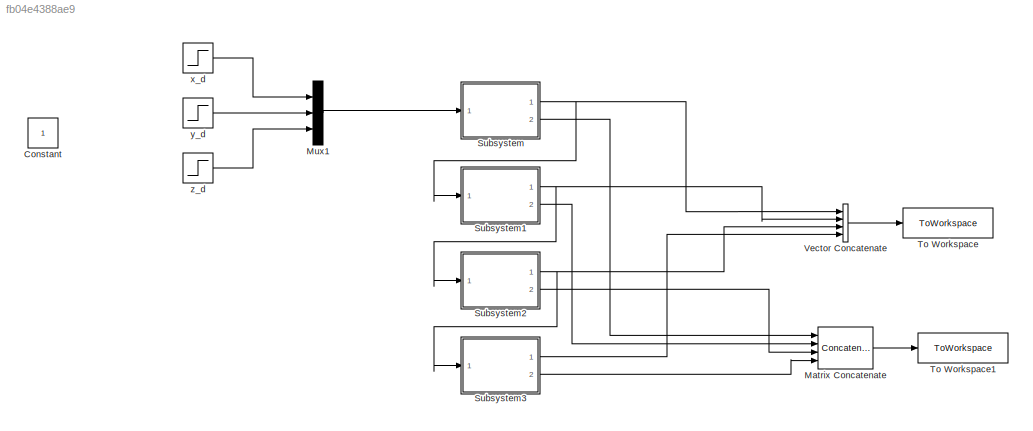
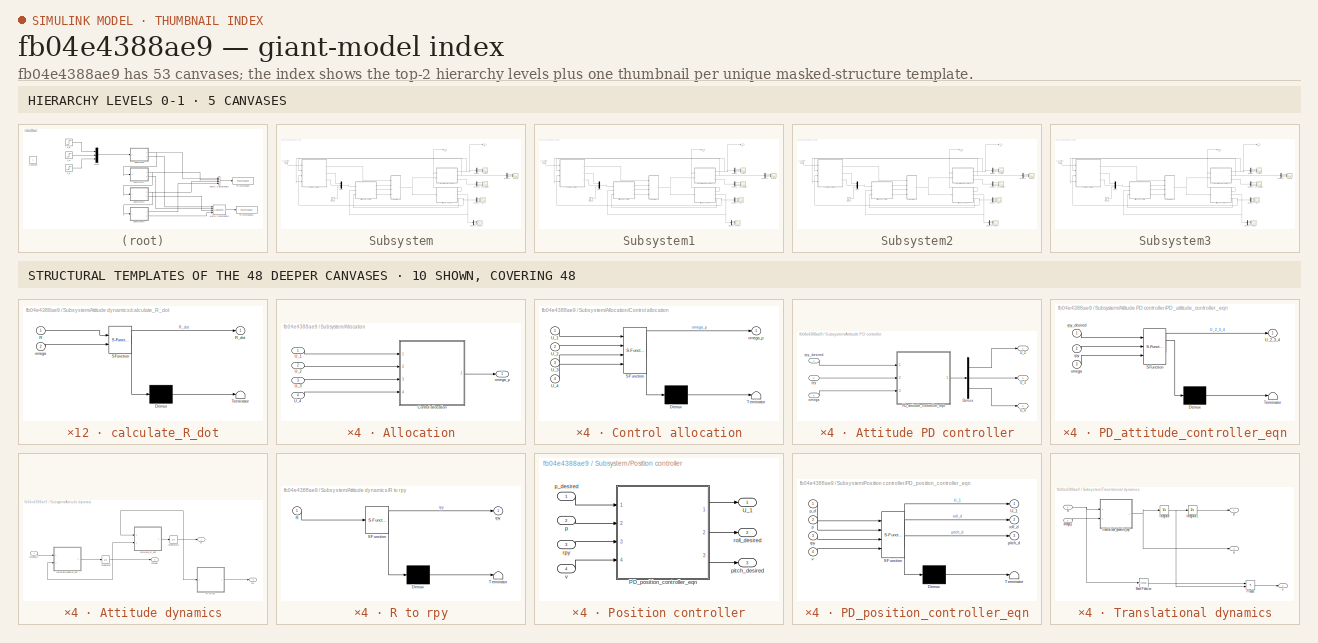
[diagram: thumbnail index - top-2 hierarchy levels (5 canvases) + 10 structural-template representatives of the remaining 48 canvases]
MODEL slx_fb04e4388ae9
KIND model
CONFIG AbsTol = auto
CONFIG EnableMultiTasking = on
CONFIG FixedStep = 0.01
CONFIG MaxStep = auto
CONFIG MinStep = auto
CONFIG RelTol = 1e-3
CONFIG SampleTimeConstraint = Unconstrained
CONFIG Solver = ode4
CONFIG SolverName = ode4
CONFIG StartTime = 0.0
CONFIG StopTime = 10
BLOCK [Constant] Constant
  IOType = siggen
BLOCK [Concatenate] Matrix Concatenate
  ConcatenateDimension = 2
  Mode = Multidimensional array
  NumInputs = 4
  Ports = [4, 1]
BLOCK [Mux] Mux1
  DisplayOption = bar
  Inputs = 3
  Ports = [3, 1]
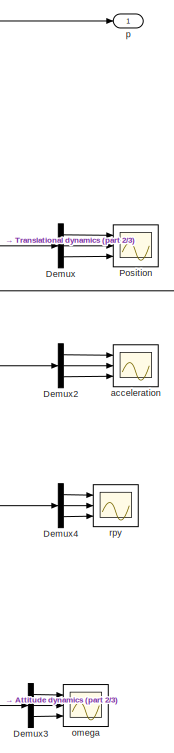
[diagram: Subsystem - part 1/3, right side, full height]
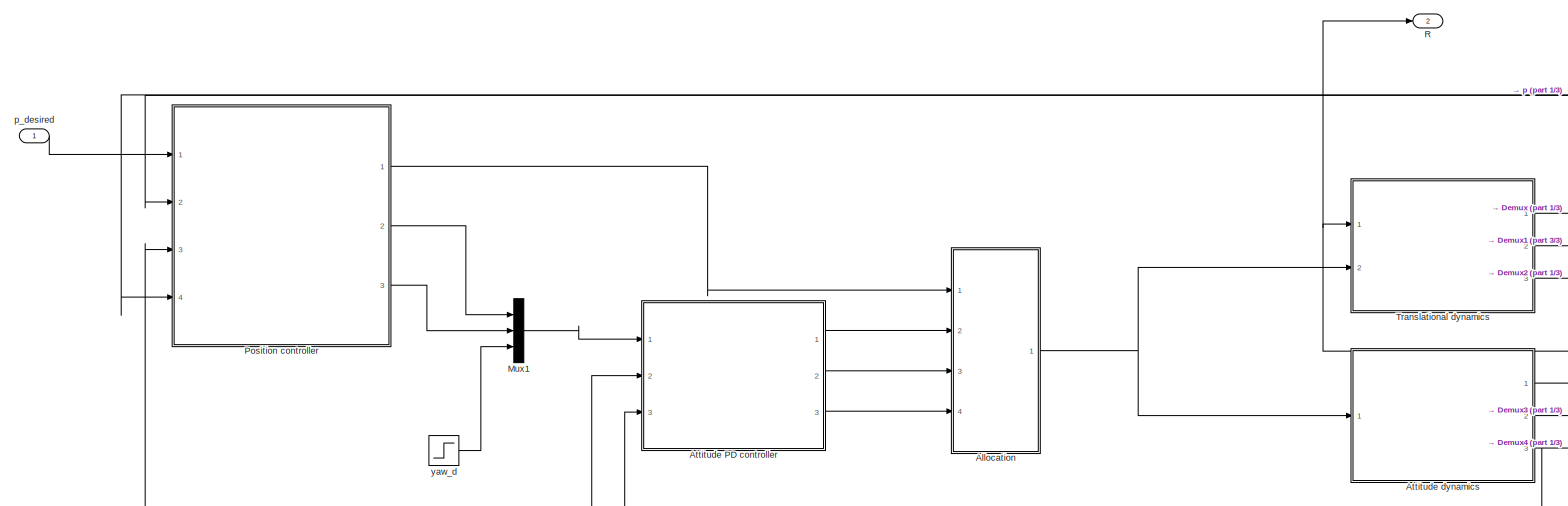
[diagram: Subsystem - part 2/3, full width, middle band]
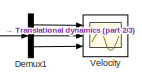
[diagram: Subsystem - part 3/3, middle right region]
BLOCK [SubSystem] Subsystem
  Ports = [1, 2]
  RequestExecContextInheritance = off
BLOCK [SubSystem] Subsystem/Allocation
  Ports = [4, 1]
  RequestExecContextInheritance = off
BLOCK [SubSystem] Subsystem/Allocation/Control allocation
  ErrorFcn = Stateflow.Translate.translate
  PermitHierarchicalResolution = ExplicitOnly
  Ports = [4, 1]
  RequestExecContextInheritance = off
  SFBlockType = MATLAB Function
  TreatAsAtomicUnit = on
BLOCK [Demux] Subsystem/Allocation/Control allocation/ Demux 
  Outputs = 1
  Ports = [1, 1]
BLOCK [S-Function] Subsystem/Allocation/Control allocation/ SFunction 
  EnableBusSupport = on
  FunctionName = sf_sfun
  PortCounts = [4 2]
  Ports = [4, 2]
  SFcnIsStateOwnerBlock = off
  SFunctionDeploymentMode = off
  Tag = Stateflow S-Function 7
BLOCK [Terminator] Subsystem/Allocation/Control allocation/ Terminator 
BLOCK [Inport] Subsystem/Allocation/Control allocation/U_1
BLOCK [Inport] Subsystem/Allocation/Control allocation/U_2
  Port = 2
BLOCK [Inport] Subsystem/Allocation/Control allocation/U_3
  Port = 3
BLOCK [Inport] Subsystem/Allocation/Control allocation/U_4
  Port = 4
BLOCK [Outport] Subsystem/Allocation/Control allocation/omega_p
  VectorParamsAs1DForOutWhenUnconnected = off
BLOCK [Inport] Subsystem/Allocation/U_1
BLOCK [Inport] Subsystem/Allocation/U_2
  Port = 2
BLOCK [Inport] Subsystem/Allocation/U_3
  Port = 3
BLOCK [Inport] Subsystem/Allocation/U_4
  Port = 4
BLOCK [Outport] Subsystem/Allocation/omega_p
  PortDimensions = [4,1]
  VarSizeSig = No
  VectorParamsAs1DForOutWhenUnconnected = off
BLOCK [SubSystem] Subsystem/Attitude PD controller
  Ports = [3, 3]
  RequestExecContextInheritance = off
BLOCK [Demux] Subsystem/Attitude PD controller/Demux
  Outputs = 3
  Ports = [1, 3]
BLOCK [SubSystem] Subsystem/Attitude PD controller/PD_attitude_controller_eqn
  ErrorFcn = Stateflow.Translate.translate
  PermitHierarchicalResolution = ExplicitOnly
  Ports = [3, 1]
  RequestExecContextInheritance = off
  SFBlockType = MATLAB Function
  TreatAsAtomicUnit = on
BLOCK [Demux] Subsystem/Attitude PD controller/PD_attitude_controller_eqn/ Demux 
  Outputs = 1
  Ports = [1, 1]
BLOCK [S-Function] Subsystem/Attitude PD controller/PD_attitude_controller_eqn/ SFunction 
  EnableBusSupport = on
  FunctionName = sf_sfun
  PortCounts = [3 2]
  Ports = [3, 2]
  SFcnIsStateOwnerBlock = off
  SFunctionDeploymentMode = off
  Tag = Stateflow S-Function 5
BLOCK [Terminator] Subsystem/Attitude PD controller/PD_attitude_controller_eqn/ Terminator 
BLOCK [Outport] Subsystem/Attitude PD controller/PD_attitude_controller_eqn/U_2_3_4
  VectorParamsAs1DForOutWhenUnconnected = off
BLOCK [Inport] Subsystem/Attitude PD controller/PD_attitude_controller_eqn/omega
  Port = 3
BLOCK [Inport] Subsystem/Attitude PD controller/PD_attitude_controller_eqn/rpy
  Port = 2
BLOCK [Inport] Subsystem/Attitude PD controller/PD_attitude_controller_eqn/rpy_desired
BLOCK [Outport] Subsystem/Attitude PD controller/U_2
  VectorParamsAs1DForOutWhenUnconnected = off
BLOCK [Outport] Subsystem/Attitude PD controller/U_3
  Port = 2
  VectorParamsAs1DForOutWhenUnconnected = off
BLOCK [Outport] Subsystem/Attitude PD controller/U_4
  Port = 3
  VectorParamsAs1DForOutWhenUnconnected = off
BLOCK [Inport] Subsystem/Attitude PD controller/omega 
  Port = 2
BLOCK [Inport] Subsystem/Attitude PD controller/rpy
  Port = 3
BLOCK [Inport] Subsystem/Attitude PD controller/rpy_desired
BLOCK [SubSystem] Subsystem/Attitude dynamics
  Ports = [1, 3]
  RequestExecContextInheritance = off
BLOCK [Integrator] Subsystem/Attitude dynamics/Integrator
  InitialCondition = zeros(3,1)
  Ports = [1, 1]
BLOCK [Integrator] Subsystem/Attitude dynamics/Integrator1
  InitialCondition = eye(3)
  Ports = [1, 1]
BLOCK [Outport] Subsystem/Attitude dynamics/R
  VectorParamsAs1DForOutWhenUnconnected = off
BLOCK [SubSystem] Subsystem/Attitude dynamics/R to rpy
  ErrorFcn = Stateflow.Translate.translate
  PermitHierarchicalResolution = ExplicitOnly
  Ports = [1, 1]
  RequestExecContextInheritance = off
  SFBlockType = MATLAB Function
  TreatAsAtomicUnit = on
BLOCK [Demux] Subsystem/Attitude dynamics/R to rpy/ Demux 
  Outputs = 1
  Ports = [1, 1]
BLOCK [S-Function] Subsystem/Attitude dynamics/R to rpy/ SFunction 
  EnableBusSupport = on
  FunctionName = sf_sfun
  PortCounts = [1 2]
  Ports = [1, 2]
  SFcnIsStateOwnerBlock = off
  SFunctionDeploymentMode = off
  Tag = Stateflow S-Function 4
BLOCK [Terminator] Subsystem/Attitude dynamics/R to rpy/ Terminator 
BLOCK [Inport] Subsystem/Attitude dynamics/R to rpy/R
BLOCK [Outport] Subsystem/Attitude dynamics/R to rpy/rpy
  VectorParamsAs1DForOutWhenUnconnected = off
BLOCK [SubSystem] Subsystem/Attitude dynamics/calculate_R_dot
  ErrorFcn = Stateflow.Translate.translate
  PermitHierarchicalResolution = ExplicitOnly
  Ports = [2, 1]
  RequestExecContextInheritance = off
  SFBlockType = MATLAB Function
  TreatAsAtomicUnit = on
BLOCK [Demux] Subsystem/Attitude dynamics/calculate_R_dot/ Demux 
  Outputs = 1
  Ports = [1, 1]
BLOCK [S-Function] Subsystem/Attitude dynamics/calculate_R_dot/ SFunction 
  EnableBusSupport = on
  FunctionName = sf_sfun
  PortCounts = [2 2]
  Ports = [2, 2]
  SFcnIsStateOwnerBlock = off
  SFunctionDeploymentMode = off
  Tag = Stateflow S-Function 3
BLOCK [Terminator] Subsystem/Attitude dynamics/calculate_R_dot/ Terminator 
BLOCK [Inport] Subsystem/Attitude dynamics/calculate_R_dot/R
BLOCK [Outport] Subsystem/Attitude dynamics/calculate_R_dot/R_dot
  VectorParamsAs1DForOutWhenUnconnected = off
BLOCK [Inport] Subsystem/Attitude dynamics/calculate_R_dot/omega
  Port = 2
BLOCK [SubSystem] Subsystem/Attitude dynamics/calculate_angular_acc
  ErrorFcn = Stateflow.Translate.translate
  PermitHierarchicalResolution = ExplicitOnly
  Ports = [2, 1]
  RequestExecContextInheritance = off
  SFBlockType = MATLAB Function
  TreatAsAtomicUnit = on
BLOCK [Demux] Subsystem/Attitude dynamics/calculate_angular_acc/ Demux 
  Outputs = 1
  Ports = [1, 1]
BLOCK [S-Function] Subsystem/Attitude dynamics/calculate_angular_acc/ SFunction 
  EnableBusSupport = on
  FunctionName = sf_sfun
  PortCounts = [2 2]
  Ports = [2, 2]
  SFcnIsStateOwnerBlock = off
  SFunctionDeploymentMode = off
  Tag = Stateflow S-Function 1
BLOCK [Terminator] Subsystem/Attitude dynamics/calculate_angular_acc/ Terminator 
BLOCK [Outport] Subsystem/Attitude dynamics/calculate_angular_acc/angular_acc
  VectorParamsAs1DForOutWhenUnconnected = off
BLOCK [Inport] Subsystem/Attitude dynamics/calculate_angular_acc/omega
  Port = 2
BLOCK [Inport] Subsystem/Attitude dynamics/calculate_angular_acc/omega_p
BLOCK [Outport] Subsystem/Attitude dynamics/omega
  Port = 2
  VectorParamsAs1DForOutWhenUnconnected = off
BLOCK [Inport] Subsystem/Attitude dynamics/omega_p
BLOCK [Outport] Subsystem/Attitude dynamics/rpy
  Port = 3
  VectorParamsAs1DForOutWhenUnconnected = off
BLOCK [Demux] Subsystem/Demux
  Outputs = 3
  Ports = [1, 3]
BLOCK [Demux] Subsystem/Demux1
  Outputs = 3
  Ports = [1, 3]
BLOCK [Demux] Subsystem/Demux2
  Outputs = 3
  Ports = [1, 3]
BLOCK [Demux] Subsystem/Demux3
  Outputs = 3
  Ports = [1, 3]
BLOCK [Demux] Subsystem/Demux4
  Outputs = 3
  Ports = [1, 3]
BLOCK [Mux] Subsystem/Mux1
  DisplayOption = bar
  Inputs = 3
  Ports = [3, 1]
BLOCK [Scope] Subsystem/Position
  Floating = off
  NumInputPorts = 3
  Ports = [3]
  ScopeSpecificationString = Simulink.scopes.TimeScopeBlockCfg('CurrentConfiguration', extmgr.ConfigurationSet(extmgr.Configuration('Core','General UI',true),extmgr.Configuration('Core','Source UI',true),extmgr.Configuration('Sources','WiredSimulink',true,'DataLoggingSaveFormat','StructureWithTime','DataLoggingMaxPoints','10000','DataLoggingLimitDataPoints',true,'DataLoggingDecimation','1','DataLoggingDecimateData',true,'Data...<+3054ch>  <repeated x4 — deduplicated; at blocks: Position>
BLOCK [SubSystem] Subsystem/Position controller
  Ports = [4, 3]
  RequestExecContextInheritance = off
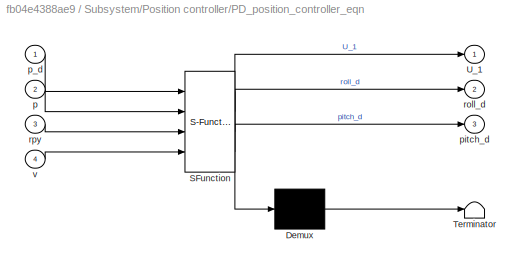
BLOCK [SubSystem] Subsystem/Position controller/PD_position_controller_eqn
  ErrorFcn = Stateflow.Translate.translate
  PermitHierarchicalResolution = ExplicitOnly
  Ports = [4, 3]
  RequestExecContextInheritance = off
  SFBlockType = MATLAB Function
  TreatAsAtomicUnit = on
BLOCK [Demux] Subsystem/Position controller/PD_position_controller_eqn/ Demux 
  Outputs = 1
  Ports = [1, 1]
BLOCK [S-Function] Subsystem/Position controller/PD_position_controller_eqn/ SFunction 
  EnableBusSupport = on
  FunctionName = sf_sfun
  PortCounts = [4 4]
  Ports = [4, 4]
  SFcnIsStateOwnerBlock = off
  SFunctionDeploymentMode = off
  Tag = Stateflow S-Function 9
BLOCK [Terminator] Subsystem/Position controller/PD_position_controller_eqn/ Terminator 
BLOCK [Outport] Subsystem/Position controller/PD_position_controller_eqn/U_1
  VectorParamsAs1DForOutWhenUnconnected = off
BLOCK [Inport] Subsystem/Position controller/PD_position_controller_eqn/p
  Port = 2
BLOCK [Inport] Subsystem/Position controller/PD_position_controller_eqn/p_d
BLOCK [Outport] Subsystem/Position controller/PD_position_controller_eqn/pitch_d
  Port = 3
BLOCK [Outport] Subsystem/Position controller/PD_position_controller_eqn/roll_d
  Port = 2
BLOCK [Inport] Subsystem/Position controller/PD_position_controller_eqn/rpy
  Port = 3
BLOCK [Inport] Subsystem/Position controller/PD_position_controller_eqn/v
  Port = 4
BLOCK [Outport] Subsystem/Position controller/U_1
  VectorParamsAs1DForOutWhenUnconnected = off
BLOCK [Inport] Subsystem/Position controller/p
  Port = 2
BLOCK [Inport] Subsystem/Position controller/p_desired
BLOCK [Outport] Subsystem/Position controller/pitch_desired
  Port = 3
  VectorParamsAs1DForOutWhenUnconnected = off
BLOCK [Outport] Subsystem/Position controller/roll_desired
  Port = 2
  VectorParamsAs1DForOutWhenUnconnected = off
BLOCK [Inport] Subsystem/Position controller/rpy
  Port = 3
BLOCK [Inport] Subsystem/Position controller/v
  Port = 4
BLOCK [Outport] Subsystem/R
  Port = 2
  VectorParamsAs1DForOutWhenUnconnected = off
BLOCK [SubSystem] Subsystem/Translational dynamics
  Ports = [2, 3]
  RequestExecContextInheritance = off
BLOCK [Integrator] Subsystem/Translational dynamics/Integrator
  Ports = [1, 1]
BLOCK [Integrator] Subsystem/Translational dynamics/Integrator1
  InitialCondition = [-2 2 0]
  Ports = [1, 1]
BLOCK [Math] Subsystem/Translational dynamics/Math Function
  Operator = transpose
  Ports = [1, 1]
  SignedPower = on
BLOCK [Product] Subsystem/Translational dynamics/Product
  Multiplication = Matrix(*)
  Ports = [2, 1]
BLOCK [Inport] Subsystem/Translational dynamics/R
BLOCK [Outport] Subsystem/Translational dynamics/a
  Port = 3
  VectorParamsAs1DForOutWhenUnconnected = off
BLOCK [Inport] Subsystem/Translational dynamics/omega_p
  Port = 2
BLOCK [Outport] Subsystem/Translational dynamics/p
  VectorParamsAs1DForOutWhenUnconnected = off
BLOCK [SubSystem] Subsystem/Translational dynamics/translational_dynamics_eqn
  ErrorFcn = Stateflow.Translate.translate
  PermitHierarchicalResolution = ExplicitOnly
  Ports = [2, 1]
  RequestExecContextInheritance = off
  SFBlockType = MATLAB Function
  TreatAsAtomicUnit = on
BLOCK [Demux] Subsystem/Translational dynamics/translational_dynamics_eqn/ Demux 
  Outputs = 1
  Ports = [1, 1]
BLOCK [S-Function] Subsystem/Translational dynamics/translational_dynamics_eqn/ SFunction 
  EnableBusSupport = on
  FunctionName = sf_sfun
  PortCounts = [2 2]
  Ports = [2, 2]
  SFcnIsStateOwnerBlock = off
  SFunctionDeploymentMode = off
  Tag = Stateflow S-Function 2
BLOCK [Terminator] Subsystem/Translational dynamics/translational_dynamics_eqn/ Terminator 
BLOCK [Inport] Subsystem/Translational dynamics/translational_dynamics_eqn/R
BLOCK [Outport] Subsystem/Translational dynamics/translational_dynamics_eqn/acc
  VectorParamsAs1DForOutWhenUnconnected = off
BLOCK [Inport] Subsystem/Translational dynamics/translational_dynamics_eqn/omega_p
  Port = 2
BLOCK [Outport] Subsystem/Translational dynamics/v
  Port = 2
  VectorParamsAs1DForOutWhenUnconnected = off
BLOCK [Scope] Subsystem/Velocity
  Floating = off
  NumInputPorts = 3
  Ports = [3]
  ScopeSpecificationString = Simulink.scopes.TimeScopeBlockCfg('CurrentConfiguration', extmgr.ConfigurationSet(extmgr.Configuration('Core','General UI',true),extmgr.Configuration('Core','Source UI',true),extmgr.Configuration('Sources','WiredSimulink',true,'DataLoggingVariableName','ScopeData1','DataLoggingSaveFormat','StructureWithTime','DataLoggingMaxPoints','10000','DataLoggingLimitDataPoints',true,'DataLoggingDecimation','...<+3917ch>  <repeated x4 — deduplicated; at blocks: Velocity>
BLOCK [Scope] Subsystem/acceleration
  Floating = off
  NumInputPorts = 3
  Ports = [3]
  ScopeSpecificationString = Simulink.scopes.TimeScopeBlockCfg('CurrentConfiguration', extmgr.ConfigurationSet(extmgr.Configuration('Core','General UI',true),extmgr.Configuration('Core','Source UI',true),extmgr.Configuration('Sources','WiredSimulink',true,'DataLoggingSaveFormat','StructureWithTime','DataLoggingMaxPoints','10000','DataLoggingLimitDataPoints',true,'DataLoggingDecimation','1','DataLoggingDecimateData',true),extm...<+3015ch>  <repeated x4 — deduplicated; at blocks: acceleration>
BLOCK [Scope] Subsystem/omega
  Floating = off
  NumInputPorts = 3
  Ports = [3]
  ScopeSpecificationString = Simulink.scopes.TimeScopeBlockCfg('CurrentConfiguration', extmgr.ConfigurationSet(extmgr.Configuration('Core','General UI',true),extmgr.Configuration('Core','Source UI',true),extmgr.Configuration('Sources','WiredSimulink',true,'DataLoggingVariableName','ScopeData4','DataLoggingSaveFormat','StructureWithTime','DataLoggingMaxPoints','10000','DataLoggingLimitDataPoints',true,'DataLoggingDecimation','...<+3061ch>  <repeated x4 — deduplicated; at blocks: omega>
BLOCK [Outport] Subsystem/p
  VectorParamsAs1DForOutWhenUnconnected = off
BLOCK [Inport] Subsystem/p_desired
BLOCK [Scope] Subsystem/rpy
  Floating = off
  NumInputPorts = 3
  Ports = [3]
  ScopeSpecificationString = Simulink.scopes.TimeScopeBlockCfg('CurrentConfiguration', extmgr.ConfigurationSet(extmgr.Configuration('Core','General UI',true),extmgr.Configuration('Core','Source UI',true),extmgr.Configuration('Sources','WiredSimulink',true,'DataLoggingVariableName','ScopeData3','DataLoggingSaveFormat','StructureWithTime','DataLoggingMaxPoints','10000','DataLoggingLimitDataPoints',true,'DataLoggingDecimation','...<+3060ch>  <repeated x4 — deduplicated; at blocks: rpy>
BLOCK [Step] Subsystem/yaw_d
  After = 0
  SampleTime = 0
BLOCK [SubSystem] Subsystem1
  Ports = [1, 2]
  RequestExecContextInheritance = off
BLOCK [SubSystem] Subsystem1/Allocation
  Ports = [4, 1]
  RequestExecContextInheritance = off
BLOCK [SubSystem] Subsystem1/Allocation/Control allocation
  ErrorFcn = Stateflow.Translate.translate
  PermitHierarchicalResolution = ExplicitOnly
  Ports = [4, 1]
  RequestExecContextInheritance = off
  SFBlockType = MATLAB Function
  TreatAsAtomicUnit = on
BLOCK [Demux] Subsystem1/Allocation/Control allocation/ Demux 
  Outputs = 1
  Ports = [1, 1]
BLOCK [S-Function] Subsystem1/Allocation/Control allocation/ SFunction 
  EnableBusSupport = on
  FunctionName = sf_sfun
  PortCounts = [4 2]
  Ports = [4, 2]
  SFcnIsStateOwnerBlock = off
  SFunctionDeploymentMode = off
  Tag = Stateflow S-Function 6
BLOCK [Terminator] Subsystem1/Allocation/Control allocation/ Terminator 
BLOCK [Inport] Subsystem1/Allocation/Control allocation/U_1
BLOCK [Inport] Subsystem1/Allocation/Control allocation/U_2
  Port = 2
BLOCK [Inport] Subsystem1/Allocation/Control allocation/U_3
  Port = 3
BLOCK [Inport] Subsystem1/Allocation/Control allocation/U_4
  Port = 4
BLOCK [Outport] Subsystem1/Allocation/Control allocation/omega_p
  VectorParamsAs1DForOutWhenUnconnected = off
BLOCK [Inport] Subsystem1/Allocation/U_1
BLOCK [Inport] Subsystem1/Allocation/U_2
  Port = 2
BLOCK [Inport] Subsystem1/Allocation/U_3
  Port = 3
BLOCK [Inport] Subsystem1/Allocation/U_4
  Port = 4
BLOCK [Outport] Subsystem1/Allocation/omega_p
  PortDimensions = [4,1]
  VarSizeSig = No
  VectorParamsAs1DForOutWhenUnconnected = off
BLOCK [SubSystem] Subsystem1/Attitude PD controller
  Ports = [3, 3]
  RequestExecContextInheritance = off
BLOCK [Demux] Subsystem1/Attitude PD controller/Demux
  Outputs = 3
  Ports = [1, 3]
BLOCK [SubSystem] Subsystem1/Attitude PD controller/PD_attitude_controller_eqn
  ErrorFcn = Stateflow.Translate.translate
  PermitHierarchicalResolution = ExplicitOnly
  Ports = [3, 1]
  RequestExecContextInheritance = off
  SFBlockType = MATLAB Function
  TreatAsAtomicUnit = on
BLOCK [Demux] Subsystem1/Attitude PD controller/PD_attitude_controller_eqn/ Demux 
  Outputs = 1
  Ports = [1, 1]
BLOCK [S-Function] Subsystem1/Attitude PD controller/PD_attitude_controller_eqn/ SFunction 
  EnableBusSupport = on
  FunctionName = sf_sfun
  PortCounts = [3 2]
  Ports = [3, 2]
  SFcnIsStateOwnerBlock = off
  SFunctionDeploymentMode = off
  Tag = Stateflow S-Function 8
BLOCK [Terminator] Subsystem1/Attitude PD controller/PD_attitude_controller_eqn/ Terminator 
BLOCK [Outport] Subsystem1/Attitude PD controller/PD_attitude_controller_eqn/U_2_3_4
  VectorParamsAs1DForOutWhenUnconnected = off
BLOCK [Inport] Subsystem1/Attitude PD controller/PD_attitude_controller_eqn/omega
  Port = 3
BLOCK [Inport] Subsystem1/Attitude PD controller/PD_attitude_controller_eqn/rpy
  Port = 2
BLOCK [Inport] Subsystem1/Attitude PD controller/PD_attitude_controller_eqn/rpy_desired
BLOCK [Outport] Subsystem1/Attitude PD controller/U_2
  VectorParamsAs1DForOutWhenUnconnected = off
BLOCK [Outport] Subsystem1/Attitude PD controller/U_3
  Port = 2
  VectorParamsAs1DForOutWhenUnconnected = off
BLOCK [Outport] Subsystem1/Attitude PD controller/U_4
  Port = 3
  VectorParamsAs1DForOutWhenUnconnected = off
BLOCK [Inport] Subsystem1/Attitude PD controller/omega 
  Port = 2
BLOCK [Inport] Subsystem1/Attitude PD controller/rpy
  Port = 3
BLOCK [Inport] Subsystem1/Attitude PD controller/rpy_desired
BLOCK [SubSystem] Subsystem1/Attitude dynamics
  Ports = [1, 3]
  RequestExecContextInheritance = off
BLOCK [Integrator] Subsystem1/Attitude dynamics/Integrator
  InitialCondition = zeros(3,1)
  Ports = [1, 1]
BLOCK [Integrator] Subsystem1/Attitude dynamics/Integrator1
  InitialCondition = eye(3)
  Ports = [1, 1]
BLOCK [Outport] Subsystem1/Attitude dynamics/R
  VectorParamsAs1DForOutWhenUnconnected = off
BLOCK [SubSystem] Subsystem1/Attitude dynamics/R to rpy
  ErrorFcn = Stateflow.Translate.translate
  PermitHierarchicalResolution = ExplicitOnly
  Ports = [1, 1]
  RequestExecContextInheritance = off
  SFBlockType = MATLAB Function
  TreatAsAtomicUnit = on
BLOCK [Demux] Subsystem1/Attitude dynamics/R to rpy/ Demux 
  Outputs = 1
  Ports = [1, 1]
BLOCK [S-Function] Subsystem1/Attitude dynamics/R to rpy/ SFunction 
  EnableBusSupport = on
  FunctionName = sf_sfun
  PortCounts = [1 2]
  Ports = [1, 2]
  SFcnIsStateOwnerBlock = off
  SFunctionDeploymentMode = off
  Tag = Stateflow S-Function 10
BLOCK [Terminator] Subsystem1/Attitude dynamics/R to rpy/ Terminator 
BLOCK [Inport] Subsystem1/Attitude dynamics/R to rpy/R
BLOCK [Outport] Subsystem1/Attitude dynamics/R to rpy/rpy
  VectorParamsAs1DForOutWhenUnconnected = off
BLOCK [SubSystem] Subsystem1/Attitude dynamics/calculate_R_dot
  ErrorFcn = Stateflow.Translate.translate
  PermitHierarchicalResolution = ExplicitOnly
  Ports = [2, 1]
  RequestExecContextInheritance = off
  SFBlockType = MATLAB Function
  TreatAsAtomicUnit = on
BLOCK [Demux] Subsystem1/Attitude dynamics/calculate_R_dot/ Demux 
  Outputs = 1
  Ports = [1, 1]
BLOCK [S-Function] Subsystem1/Attitude dynamics/calculate_R_dot/ SFunction 
  EnableBusSupport = on
  FunctionName = sf_sfun
  PortCounts = [2 2]
  Ports = [2, 2]
  SFcnIsStateOwnerBlock = off
  SFunctionDeploymentMode = off
  Tag = Stateflow S-Function 11
BLOCK [Terminator] Subsystem1/Attitude dynamics/calculate_R_dot/ Terminator 
BLOCK [Inport] Subsystem1/Attitude dynamics/calculate_R_dot/R
BLOCK [Outport] Subsystem1/Attitude dynamics/calculate_R_dot/R_dot
  VectorParamsAs1DForOutWhenUnconnected = off
BLOCK [Inport] Subsystem1/Attitude dynamics/calculate_R_dot/omega
  Port = 2
BLOCK [SubSystem] Subsystem1/Attitude dynamics/calculate_angular_acc
  ErrorFcn = Stateflow.Translate.translate
  PermitHierarchicalResolution = ExplicitOnly
  Ports = [2, 1]
  RequestExecContextInheritance = off
  SFBlockType = MATLAB Function
  TreatAsAtomicUnit = on
BLOCK [Demux] Subsystem1/Attitude dynamics/calculate_angular_acc/ Demux 
  Outputs = 1
  Ports = [1, 1]
BLOCK [S-Function] Subsystem1/Attitude dynamics/calculate_angular_acc/ SFunction 
  EnableBusSupport = on
  FunctionName = sf_sfun
  PortCounts = [2 2]
  Ports = [2, 2]
  SFcnIsStateOwnerBlock = off
  SFunctionDeploymentMode = off
  Tag = Stateflow S-Function 12
BLOCK [Terminator] Subsystem1/Attitude dynamics/calculate_angular_acc/ Terminator 
BLOCK [Outport] Subsystem1/Attitude dynamics/calculate_angular_acc/angular_acc
  VectorParamsAs1DForOutWhenUnconnected = off
BLOCK [Inport] Subsystem1/Attitude dynamics/calculate_angular_acc/omega
  Port = 2
BLOCK [Inport] Subsystem1/Attitude dynamics/calculate_angular_acc/omega_p
BLOCK [Outport] Subsystem1/Attitude dynamics/omega
  Port = 2
  VectorParamsAs1DForOutWhenUnconnected = off
BLOCK [Inport] Subsystem1/Attitude dynamics/omega_p
BLOCK [Outport] Subsystem1/Attitude dynamics/rpy
  Port = 3
  VectorParamsAs1DForOutWhenUnconnected = off
BLOCK [Demux] Subsystem1/Demux
  Outputs = 3
  Ports = [1, 3]
BLOCK [Demux] Subsystem1/Demux1
  Outputs = 3
  Ports = [1, 3]
BLOCK [Demux] Subsystem1/Demux2
  Outputs = 3
  Ports = [1, 3]
BLOCK [Demux] Subsystem1/Demux3
  Outputs = 3
  Ports = [1, 3]
BLOCK [Demux] Subsystem1/Demux4
  Outputs = 3
  Ports = [1, 3]
BLOCK [Mux] Subsystem1/Mux1
  DisplayOption = bar
  Inputs = 3
  Ports = [3, 1]
BLOCK [Scope] Subsystem1/Position
  Floating = off
  NumInputPorts = 3
  Ports = [3]
BLOCK [SubSystem] Subsystem1/Position controller
  Ports = [4, 3]
  RequestExecContextInheritance = off
BLOCK [SubSystem] Subsystem1/Position controller/PD_position_controller_eqn
  ErrorFcn = Stateflow.Translate.translate
  PermitHierarchicalResolution = ExplicitOnly
  Ports = [4, 3]
  RequestExecContextInheritance = off
  SFBlockType = MATLAB Function
  TreatAsAtomicUnit = on
BLOCK [Demux] Subsystem1/Position controller/PD_position_controller_eqn/ Demux 
  Outputs = 1
  Ports = [1, 1]
BLOCK [S-Function] Subsystem1/Position controller/PD_position_controller_eqn/ SFunction 
  EnableBusSupport = on
  FunctionName = sf_sfun
  PortCounts = [4 4]
  Ports = [4, 4]
  SFcnIsStateOwnerBlock = off
  SFunctionDeploymentMode = off
  Tag = Stateflow S-Function 13
BLOCK [Terminator] Subsystem1/Position controller/PD_position_controller_eqn/ Terminator 
BLOCK [Outport] Subsystem1/Position controller/PD_position_controller_eqn/U_1
  VectorParamsAs1DForOutWhenUnconnected = off
BLOCK [Inport] Subsystem1/Position controller/PD_position_controller_eqn/p
  Port = 2
BLOCK [Inport] Subsystem1/Position controller/PD_position_controller_eqn/p_d
BLOCK [Outport] Subsystem1/Position controller/PD_position_controller_eqn/pitch_d
  Port = 3
BLOCK [Outport] Subsystem1/Position controller/PD_position_controller_eqn/roll_d
  Port = 2
BLOCK [Inport] Subsystem1/Position controller/PD_position_controller_eqn/rpy
  Port = 3
BLOCK [Inport] Subsystem1/Position controller/PD_position_controller_eqn/v
  Port = 4
BLOCK [Outport] Subsystem1/Position controller/U_1
  VectorParamsAs1DForOutWhenUnconnected = off
BLOCK [Inport] Subsystem1/Position controller/p
  Port = 2
BLOCK [Inport] Subsystem1/Position controller/p_desired
BLOCK [Outport] Subsystem1/Position controller/pitch_desired
  Port = 3
  VectorParamsAs1DForOutWhenUnconnected = off
BLOCK [Outport] Subsystem1/Position controller/roll_desired
  Port = 2
  VectorParamsAs1DForOutWhenUnconnected = off
BLOCK [Inport] Subsystem1/Position controller/rpy
  Port = 3
BLOCK [Inport] Subsystem1/Position controller/v
  Port = 4
BLOCK [Outport] Subsystem1/R
  Port = 2
  VectorParamsAs1DForOutWhenUnconnected = off
BLOCK [SubSystem] Subsystem1/Translational dynamics
  Ports = [2, 3]
  RequestExecContextInheritance = off
BLOCK [Integrator] Subsystem1/Translational dynamics/Integrator
  Ports = [1, 1]
BLOCK [Integrator] Subsystem1/Translational dynamics/Integrator1
  InitialCondition = [-2 -2 0]
  Ports = [1, 1]
BLOCK [Math] Subsystem1/Translational dynamics/Math Function
  Operator = transpose
  Ports = [1, 1]
  SignedPower = on
BLOCK [Product] Subsystem1/Translational dynamics/Product
  Multiplication = Matrix(*)
  Ports = [2, 1]
BLOCK [Inport] Subsystem1/Translational dynamics/R
BLOCK [Outport] Subsystem1/Translational dynamics/a
  Port = 3
  VectorParamsAs1DForOutWhenUnconnected = off
BLOCK [Inport] Subsystem1/Translational dynamics/omega_p
  Port = 2
BLOCK [Outport] Subsystem1/Translational dynamics/p
  VectorParamsAs1DForOutWhenUnconnected = off
BLOCK [SubSystem] Subsystem1/Translational dynamics/translational_dynamics_eqn
  ErrorFcn = Stateflow.Translate.translate
  PermitHierarchicalResolution = ExplicitOnly
  Ports = [2, 1]
  RequestExecContextInheritance = off
  SFBlockType = MATLAB Function
  TreatAsAtomicUnit = on
BLOCK [Demux] Subsystem1/Translational dynamics/translational_dynamics_eqn/ Demux 
  Outputs = 1
  Ports = [1, 1]
BLOCK [S-Function] Subsystem1/Translational dynamics/translational_dynamics_eqn/ SFunction 
  EnableBusSupport = on
  FunctionName = sf_sfun
  PortCounts = [2 2]
  Ports = [2, 2]
  SFcnIsStateOwnerBlock = off
  SFunctionDeploymentMode = off
  Tag = Stateflow S-Function 14
BLOCK [Terminator] Subsystem1/Translational dynamics/translational_dynamics_eqn/ Terminator 
BLOCK [Inport] Subsystem1/Translational dynamics/translational_dynamics_eqn/R
BLOCK [Outport] Subsystem1/Translational dynamics/translational_dynamics_eqn/acc
  VectorParamsAs1DForOutWhenUnconnected = off
BLOCK [Inport] Subsystem1/Translational dynamics/translational_dynamics_eqn/omega_p
  Port = 2
BLOCK [Outport] Subsystem1/Translational dynamics/v
  Port = 2
  VectorParamsAs1DForOutWhenUnconnected = off
BLOCK [Scope] Subsystem1/Velocity
  Floating = off
  NumInputPorts = 3
  Ports = [3]
BLOCK [Scope] Subsystem1/acceleration
  Floating = off
  NumInputPorts = 3
  Ports = [3]
BLOCK [Scope] Subsystem1/omega
  Floating = off
  NumInputPorts = 3
  Ports = [3]
BLOCK [Outport] Subsystem1/p
  VectorParamsAs1DForOutWhenUnconnected = off
BLOCK [Inport] Subsystem1/p_desired
BLOCK [Scope] Subsystem1/rpy
  Floating = off
  NumInputPorts = 3
  Ports = [3]
BLOCK [Step] Subsystem1/yaw_d
  After = 0
  SampleTime = 0
BLOCK [SubSystem] Subsystem2
  Ports = [1, 2]
  RequestExecContextInheritance = off
BLOCK [SubSystem] Subsystem2/Allocation
  Ports = [4, 1]
  RequestExecContextInheritance = off
BLOCK [SubSystem] Subsystem2/Allocation/Control allocation
  ErrorFcn = Stateflow.Translate.translate
  PermitHierarchicalResolution = ExplicitOnly
  Ports = [4, 1]
  RequestExecContextInheritance = off
  SFBlockType = MATLAB Function
  TreatAsAtomicUnit = on
BLOCK [Demux] Subsystem2/Allocation/Control allocation/ Demux 
  Outputs = 1
  Ports = [1, 1]
BLOCK [S-Function] Subsystem2/Allocation/Control allocation/ SFunction 
  EnableBusSupport = on
  FunctionName = sf_sfun
  PortCounts = [4 2]
  Ports = [4, 2]
  SFcnIsStateOwnerBlock = off
  SFunctionDeploymentMode = off
  Tag = Stateflow S-Function 15
BLOCK [Terminator] Subsystem2/Allocation/Control allocation/ Terminator 
BLOCK [Inport] Subsystem2/Allocation/Control allocation/U_1
BLOCK [Inport] Subsystem2/Allocation/Control allocation/U_2
  Port = 2
BLOCK [Inport] Subsystem2/Allocation/Control allocation/U_3
  Port = 3
BLOCK [Inport] Subsystem2/Allocation/Control allocation/U_4
  Port = 4
BLOCK [Outport] Subsystem2/Allocation/Control allocation/omega_p
  VectorParamsAs1DForOutWhenUnconnected = off
BLOCK [Inport] Subsystem2/Allocation/U_1
BLOCK [Inport] Subsystem2/Allocation/U_2
  Port = 2
BLOCK [Inport] Subsystem2/Allocation/U_3
  Port = 3
BLOCK [Inport] Subsystem2/Allocation/U_4
  Port = 4
BLOCK [Outport] Subsystem2/Allocation/omega_p
  PortDimensions = [4,1]
  VarSizeSig = No
  VectorParamsAs1DForOutWhenUnconnected = off
BLOCK [SubSystem] Subsystem2/Attitude PD controller
  Ports = [3, 3]
  RequestExecContextInheritance = off
BLOCK [Demux] Subsystem2/Attitude PD controller/Demux
  Outputs = 3
  Ports = [1, 3]
BLOCK [SubSystem] Subsystem2/Attitude PD controller/PD_attitude_controller_eqn
  ErrorFcn = Stateflow.Translate.translate
  PermitHierarchicalResolution = ExplicitOnly
  Ports = [3, 1]
  RequestExecContextInheritance = off
  SFBlockType = MATLAB Function
  TreatAsAtomicUnit = on
BLOCK [Demux] Subsystem2/Attitude PD controller/PD_attitude_controller_eqn/ Demux 
  Outputs = 1
  Ports = [1, 1]
BLOCK [S-Function] Subsystem2/Attitude PD controller/PD_attitude_controller_eqn/ SFunction 
  EnableBusSupport = on
  FunctionName = sf_sfun
  PortCounts = [3 2]
  Ports = [3, 2]
  SFcnIsStateOwnerBlock = off
  SFunctionDeploymentMode = off
  Tag = Stateflow S-Function 16
BLOCK [Terminator] Subsystem2/Attitude PD controller/PD_attitude_controller_eqn/ Terminator 
BLOCK [Outport] Subsystem2/Attitude PD controller/PD_attitude_controller_eqn/U_2_3_4
  VectorParamsAs1DForOutWhenUnconnected = off
BLOCK [Inport] Subsystem2/Attitude PD controller/PD_attitude_controller_eqn/omega
  Port = 3
BLOCK [Inport] Subsystem2/Attitude PD controller/PD_attitude_controller_eqn/rpy
  Port = 2
BLOCK [Inport] Subsystem2/Attitude PD controller/PD_attitude_controller_eqn/rpy_desired
BLOCK [Outport] Subsystem2/Attitude PD controller/U_2
  VectorParamsAs1DForOutWhenUnconnected = off
BLOCK [Outport] Subsystem2/Attitude PD controller/U_3
  Port = 2
  VectorParamsAs1DForOutWhenUnconnected = off
BLOCK [Outport] Subsystem2/Attitude PD controller/U_4
  Port = 3
  VectorParamsAs1DForOutWhenUnconnected = off
BLOCK [Inport] Subsystem2/Attitude PD controller/omega 
  Port = 2
BLOCK [Inport] Subsystem2/Attitude PD controller/rpy
  Port = 3
BLOCK [Inport] Subsystem2/Attitude PD controller/rpy_desired
BLOCK [SubSystem] Subsystem2/Attitude dynamics
  Ports = [1, 3]
  RequestExecContextInheritance = off
BLOCK [Integrator] Subsystem2/Attitude dynamics/Integrator
  InitialCondition = zeros(3,1)
  Ports = [1, 1]
BLOCK [Integrator] Subsystem2/Attitude dynamics/Integrator1
  InitialCondition = eye(3)
  Ports = [1, 1]
BLOCK [Outport] Subsystem2/Attitude dynamics/R
  VectorParamsAs1DForOutWhenUnconnected = off
BLOCK [SubSystem] Subsystem2/Attitude dynamics/R to rpy
  ErrorFcn = Stateflow.Translate.translate
  PermitHierarchicalResolution = ExplicitOnly
  Ports = [1, 1]
  RequestExecContextInheritance = off
  SFBlockType = MATLAB Function
  TreatAsAtomicUnit = on
BLOCK [Demux] Subsystem2/Attitude dynamics/R to rpy/ Demux 
  Outputs = 1
  Ports = [1, 1]
BLOCK [S-Function] Subsystem2/Attitude dynamics/R to rpy/ SFunction 
  EnableBusSupport = on
  FunctionName = sf_sfun
  PortCounts = [1 2]
  Ports = [1, 2]
  SFcnIsStateOwnerBlock = off
  SFunctionDeploymentMode = off
  Tag = Stateflow S-Function 17
BLOCK [Terminator] Subsystem2/Attitude dynamics/R to rpy/ Terminator 
BLOCK [Inport] Subsystem2/Attitude dynamics/R to rpy/R
BLOCK [Outport] Subsystem2/Attitude dynamics/R to rpy/rpy
  VectorParamsAs1DForOutWhenUnconnected = off
BLOCK [SubSystem] Subsystem2/Attitude dynamics/calculate_R_dot
  ErrorFcn = Stateflow.Translate.translate
  PermitHierarchicalResolution = ExplicitOnly
  Ports = [2, 1]
  RequestExecContextInheritance = off
  SFBlockType = MATLAB Function
  TreatAsAtomicUnit = on
BLOCK [Demux] Subsystem2/Attitude dynamics/calculate_R_dot/ Demux 
  Outputs = 1
  Ports = [1, 1]
BLOCK [S-Function] Subsystem2/Attitude dynamics/calculate_R_dot/ SFunction 
  EnableBusSupport = on
  FunctionName = sf_sfun
  PortCounts = [2 2]
  Ports = [2, 2]
  SFcnIsStateOwnerBlock = off
  SFunctionDeploymentMode = off
  Tag = Stateflow S-Function 18
BLOCK [Terminator] Subsystem2/Attitude dynamics/calculate_R_dot/ Terminator 
BLOCK [Inport] Subsystem2/Attitude dynamics/calculate_R_dot/R
BLOCK [Outport] Subsystem2/Attitude dynamics/calculate_R_dot/R_dot
  VectorParamsAs1DForOutWhenUnconnected = off
BLOCK [Inport] Subsystem2/Attitude dynamics/calculate_R_dot/omega
  Port = 2
BLOCK [SubSystem] Subsystem2/Attitude dynamics/calculate_angular_acc
  ErrorFcn = Stateflow.Translate.translate
  PermitHierarchicalResolution = ExplicitOnly
  Ports = [2, 1]
  RequestExecContextInheritance = off
  SFBlockType = MATLAB Function
  TreatAsAtomicUnit = on
BLOCK [Demux] Subsystem2/Attitude dynamics/calculate_angular_acc/ Demux 
  Outputs = 1
  Ports = [1, 1]
BLOCK [S-Function] Subsystem2/Attitude dynamics/calculate_angular_acc/ SFunction 
  EnableBusSupport = on
  FunctionName = sf_sfun
  PortCounts = [2 2]
  Ports = [2, 2]
  SFcnIsStateOwnerBlock = off
  SFunctionDeploymentMode = off
  Tag = Stateflow S-Function 19
BLOCK [Terminator] Subsystem2/Attitude dynamics/calculate_angular_acc/ Terminator 
BLOCK [Outport] Subsystem2/Attitude dynamics/calculate_angular_acc/angular_acc
  VectorParamsAs1DForOutWhenUnconnected = off
BLOCK [Inport] Subsystem2/Attitude dynamics/calculate_angular_acc/omega
  Port = 2
BLOCK [Inport] Subsystem2/Attitude dynamics/calculate_angular_acc/omega_p
BLOCK [Outport] Subsystem2/Attitude dynamics/omega
  Port = 2
  VectorParamsAs1DForOutWhenUnconnected = off
BLOCK [Inport] Subsystem2/Attitude dynamics/omega_p
BLOCK [Outport] Subsystem2/Attitude dynamics/rpy
  Port = 3
  VectorParamsAs1DForOutWhenUnconnected = off
BLOCK [Demux] Subsystem2/Demux
  Outputs = 3
  Ports = [1, 3]
BLOCK [Demux] Subsystem2/Demux1
  Outputs = 3
  Ports = [1, 3]
BLOCK [Demux] Subsystem2/Demux2
  Outputs = 3
  Ports = [1, 3]
BLOCK [Demux] Subsystem2/Demux3
  Outputs = 3
  Ports = [1, 3]
BLOCK [Demux] Subsystem2/Demux4
  Outputs = 3
  Ports = [1, 3]
BLOCK [Mux] Subsystem2/Mux1
  DisplayOption = bar
  Inputs = 3
  Ports = [3, 1]
BLOCK [Scope] Subsystem2/Position
  Floating = off
  NumInputPorts = 3
  Ports = [3]
BLOCK [SubSystem] Subsystem2/Position controller
  Ports = [4, 3]
  RequestExecContextInheritance = off
BLOCK [SubSystem] Subsystem2/Position controller/PD_position_controller_eqn
  ErrorFcn = Stateflow.Translate.translate
  PermitHierarchicalResolution = ExplicitOnly
  Ports = [4, 3]
  RequestExecContextInheritance = off
  SFBlockType = MATLAB Function
  TreatAsAtomicUnit = on
BLOCK [Demux] Subsystem2/Position controller/PD_position_controller_eqn/ Demux 
  Outputs = 1
  Ports = [1, 1]
BLOCK [S-Function] Subsystem2/Position controller/PD_position_controller_eqn/ SFunction 
  EnableBusSupport = on
  FunctionName = sf_sfun
  PortCounts = [4 4]
  Ports = [4, 4]
  SFcnIsStateOwnerBlock = off
  SFunctionDeploymentMode = off
  Tag = Stateflow S-Function 20
BLOCK [Terminator] Subsystem2/Position controller/PD_position_controller_eqn/ Terminator 
BLOCK [Outport] Subsystem2/Position controller/PD_position_controller_eqn/U_1
  VectorParamsAs1DForOutWhenUnconnected = off
BLOCK [Inport] Subsystem2/Position controller/PD_position_controller_eqn/p
  Port = 2
BLOCK [Inport] Subsystem2/Position controller/PD_position_controller_eqn/p_d
BLOCK [Outport] Subsystem2/Position controller/PD_position_controller_eqn/pitch_d
  Port = 3
BLOCK [Outport] Subsystem2/Position controller/PD_position_controller_eqn/roll_d
  Port = 2
BLOCK [Inport] Subsystem2/Position controller/PD_position_controller_eqn/rpy
  Port = 3
BLOCK [Inport] Subsystem2/Position controller/PD_position_controller_eqn/v
  Port = 4
BLOCK [Outport] Subsystem2/Position controller/U_1
  VectorParamsAs1DForOutWhenUnconnected = off
BLOCK [Inport] Subsystem2/Position controller/p
  Port = 2
BLOCK [Inport] Subsystem2/Position controller/p_desired
BLOCK [Outport] Subsystem2/Position controller/pitch_desired
  Port = 3
  VectorParamsAs1DForOutWhenUnconnected = off
BLOCK [Outport] Subsystem2/Position controller/roll_desired
  Port = 2
  VectorParamsAs1DForOutWhenUnconnected = off
BLOCK [Inport] Subsystem2/Position controller/rpy
  Port = 3
BLOCK [Inport] Subsystem2/Position controller/v
  Port = 4
BLOCK [Outport] Subsystem2/R
  Port = 2
  VectorParamsAs1DForOutWhenUnconnected = off
BLOCK [SubSystem] Subsystem2/Translational dynamics
  Ports = [2, 3]
  RequestExecContextInheritance = off
BLOCK [Integrator] Subsystem2/Translational dynamics/Integrator
  Ports = [1, 1]
BLOCK [Integrator] Subsystem2/Translational dynamics/Integrator1
  InitialCondition = [2 -2 0]
  Ports = [1, 1]
BLOCK [Math] Subsystem2/Translational dynamics/Math Function
  Operator = transpose
  Ports = [1, 1]
  SignedPower = on
BLOCK [Product] Subsystem2/Translational dynamics/Product
  Multiplication = Matrix(*)
  Ports = [2, 1]
BLOCK [Inport] Subsystem2/Translational dynamics/R
BLOCK [Outport] Subsystem2/Translational dynamics/a
  Port = 3
  VectorParamsAs1DForOutWhenUnconnected = off
BLOCK [Inport] Subsystem2/Translational dynamics/omega_p
  Port = 2
BLOCK [Outport] Subsystem2/Translational dynamics/p
  VectorParamsAs1DForOutWhenUnconnected = off
BLOCK [SubSystem] Subsystem2/Translational dynamics/translational_dynamics_eqn
  ErrorFcn = Stateflow.Translate.translate
  PermitHierarchicalResolution = ExplicitOnly
  Ports = [2, 1]
  RequestExecContextInheritance = off
  SFBlockType = MATLAB Function
  TreatAsAtomicUnit = on
BLOCK [Demux] Subsystem2/Translational dynamics/translational_dynamics_eqn/ Demux 
  Outputs = 1
  Ports = [1, 1]
BLOCK [S-Function] Subsystem2/Translational dynamics/translational_dynamics_eqn/ SFunction 
  EnableBusSupport = on
  FunctionName = sf_sfun
  PortCounts = [2 2]
  Ports = [2, 2]
  SFcnIsStateOwnerBlock = off
  SFunctionDeploymentMode = off
  Tag = Stateflow S-Function 21
BLOCK [Terminator] Subsystem2/Translational dynamics/translational_dynamics_eqn/ Terminator 
BLOCK [Inport] Subsystem2/Translational dynamics/translational_dynamics_eqn/R
BLOCK [Outport] Subsystem2/Translational dynamics/translational_dynamics_eqn/acc
  VectorParamsAs1DForOutWhenUnconnected = off
BLOCK [Inport] Subsystem2/Translational dynamics/translational_dynamics_eqn/omega_p
  Port = 2
BLOCK [Outport] Subsystem2/Translational dynamics/v
  Port = 2
  VectorParamsAs1DForOutWhenUnconnected = off
BLOCK [Scope] Subsystem2/Velocity
  Floating = off
  NumInputPorts = 3
  Ports = [3]
BLOCK [Scope] Subsystem2/acceleration
  Floating = off
  NumInputPorts = 3
  Ports = [3]
BLOCK [Scope] Subsystem2/omega
  Floating = off
  NumInputPorts = 3
  Ports = [3]
BLOCK [Outport] Subsystem2/p
  VectorParamsAs1DForOutWhenUnconnected = off
BLOCK [Inport] Subsystem2/p_desired
BLOCK [Scope] Subsystem2/rpy
  Floating = off
  NumInputPorts = 3
  Ports = [3]
BLOCK [Step] Subsystem2/yaw_d
  After = 0
  SampleTime = 0
BLOCK [SubSystem] Subsystem3
  Ports = [1, 2]
  RequestExecContextInheritance = off
BLOCK [SubSystem] Subsystem3/Allocation
  Ports = [4, 1]
  RequestExecContextInheritance = off
BLOCK [SubSystem] Subsystem3/Allocation/Control allocation
  ErrorFcn = Stateflow.Translate.translate
  PermitHierarchicalResolution = ExplicitOnly
  Ports = [4, 1]
  RequestExecContextInheritance = off
  SFBlockType = MATLAB Function
  TreatAsAtomicUnit = on
BLOCK [Demux] Subsystem3/Allocation/Control allocation/ Demux 
  Outputs = 1
  Ports = [1, 1]
BLOCK [S-Function] Subsystem3/Allocation/Control allocation/ SFunction 
  EnableBusSupport = on
  FunctionName = sf_sfun
  PortCounts = [4 2]
  Ports = [4, 2]
  SFcnIsStateOwnerBlock = off
  SFunctionDeploymentMode = off
  Tag = Stateflow S-Function 22
BLOCK [Terminator] Subsystem3/Allocation/Control allocation/ Terminator 
BLOCK [Inport] Subsystem3/Allocation/Control allocation/U_1
BLOCK [Inport] Subsystem3/Allocation/Control allocation/U_2
  Port = 2
BLOCK [Inport] Subsystem3/Allocation/Control allocation/U_3
  Port = 3
BLOCK [Inport] Subsystem3/Allocation/Control allocation/U_4
  Port = 4
BLOCK [Outport] Subsystem3/Allocation/Control allocation/omega_p
  VectorParamsAs1DForOutWhenUnconnected = off
BLOCK [Inport] Subsystem3/Allocation/U_1
BLOCK [Inport] Subsystem3/Allocation/U_2
  Port = 2
BLOCK [Inport] Subsystem3/Allocation/U_3
  Port = 3
BLOCK [Inport] Subsystem3/Allocation/U_4
  Port = 4
BLOCK [Outport] Subsystem3/Allocation/omega_p
  PortDimensions = [4,1]
  VarSizeSig = No
  VectorParamsAs1DForOutWhenUnconnected = off
BLOCK [SubSystem] Subsystem3/Attitude PD controller
  Ports = [3, 3]
  RequestExecContextInheritance = off
BLOCK [Demux] Subsystem3/Attitude PD controller/Demux
  Outputs = 3
  Ports = [1, 3]
BLOCK [SubSystem] Subsystem3/Attitude PD controller/PD_attitude_controller_eqn
  ErrorFcn = Stateflow.Translate.translate
  PermitHierarchicalResolution = ExplicitOnly
  Ports = [3, 1]
  RequestExecContextInheritance = off
  SFBlockType = MATLAB Function
  TreatAsAtomicUnit = on
BLOCK [Demux] Subsystem3/Attitude PD controller/PD_attitude_controller_eqn/ Demux 
  Outputs = 1
  Ports = [1, 1]
BLOCK [S-Function] Subsystem3/Attitude PD controller/PD_attitude_controller_eqn/ SFunction 
  EnableBusSupport = on
  FunctionName = sf_sfun
  PortCounts = [3 2]
  Ports = [3, 2]
  SFcnIsStateOwnerBlock = off
  SFunctionDeploymentMode = off
  Tag = Stateflow S-Function 23
BLOCK [Terminator] Subsystem3/Attitude PD controller/PD_attitude_controller_eqn/ Terminator 
BLOCK [Outport] Subsystem3/Attitude PD controller/PD_attitude_controller_eqn/U_2_3_4
  VectorParamsAs1DForOutWhenUnconnected = off
BLOCK [Inport] Subsystem3/Attitude PD controller/PD_attitude_controller_eqn/omega
  Port = 3
BLOCK [Inport] Subsystem3/Attitude PD controller/PD_attitude_controller_eqn/rpy
  Port = 2
BLOCK [Inport] Subsystem3/Attitude PD controller/PD_attitude_controller_eqn/rpy_desired
BLOCK [Outport] Subsystem3/Attitude PD controller/U_2
  VectorParamsAs1DForOutWhenUnconnected = off
BLOCK [Outport] Subsystem3/Attitude PD controller/U_3
  Port = 2
  VectorParamsAs1DForOutWhenUnconnected = off
BLOCK [Outport] Subsystem3/Attitude PD controller/U_4
  Port = 3
  VectorParamsAs1DForOutWhenUnconnected = off
BLOCK [Inport] Subsystem3/Attitude PD controller/omega 
  Port = 2
BLOCK [Inport] Subsystem3/Attitude PD controller/rpy
  Port = 3
BLOCK [Inport] Subsystem3/Attitude PD controller/rpy_desired
BLOCK [SubSystem] Subsystem3/Attitude dynamics
  Ports = [1, 3]
  RequestExecContextInheritance = off
BLOCK [Integrator] Subsystem3/Attitude dynamics/Integrator
  InitialCondition = zeros(3,1)
  Ports = [1, 1]
BLOCK [Integrator] Subsystem3/Attitude dynamics/Integrator1
  InitialCondition = eye(3)
  Ports = [1, 1]
BLOCK [Outport] Subsystem3/Attitude dynamics/R
  VectorParamsAs1DForOutWhenUnconnected = off
BLOCK [SubSystem] Subsystem3/Attitude dynamics/R to rpy
  ErrorFcn = Stateflow.Translate.translate
  PermitHierarchicalResolution = ExplicitOnly
  Ports = [1, 1]
  RequestExecContextInheritance = off
  SFBlockType = MATLAB Function
  TreatAsAtomicUnit = on
BLOCK [Demux] Subsystem3/Attitude dynamics/R to rpy/ Demux 
  Outputs = 1
  Ports = [1, 1]
BLOCK [S-Function] Subsystem3/Attitude dynamics/R to rpy/ SFunction 
  EnableBusSupport = on
  FunctionName = sf_sfun
  PortCounts = [1 2]
  Ports = [1, 2]
  SFcnIsStateOwnerBlock = off
  SFunctionDeploymentMode = off
  Tag = Stateflow S-Function 24
BLOCK [Terminator] Subsystem3/Attitude dynamics/R to rpy/ Terminator 
BLOCK [Inport] Subsystem3/Attitude dynamics/R to rpy/R
BLOCK [Outport] Subsystem3/Attitude dynamics/R to rpy/rpy
  VectorParamsAs1DForOutWhenUnconnected = off
BLOCK [SubSystem] Subsystem3/Attitude dynamics/calculate_R_dot
  ErrorFcn = Stateflow.Translate.translate
  PermitHierarchicalResolution = ExplicitOnly
  Ports = [2, 1]
  RequestExecContextInheritance = off
  SFBlockType = MATLAB Function
  TreatAsAtomicUnit = on
BLOCK [Demux] Subsystem3/Attitude dynamics/calculate_R_dot/ Demux 
  Outputs = 1
  Ports = [1, 1]
BLOCK [S-Function] Subsystem3/Attitude dynamics/calculate_R_dot/ SFunction 
  EnableBusSupport = on
  FunctionName = sf_sfun
  PortCounts = [2 2]
  Ports = [2, 2]
  SFcnIsStateOwnerBlock = off
  SFunctionDeploymentMode = off
  Tag = Stateflow S-Function 25
BLOCK [Terminator] Subsystem3/Attitude dynamics/calculate_R_dot/ Terminator 
BLOCK [Inport] Subsystem3/Attitude dynamics/calculate_R_dot/R
BLOCK [Outport] Subsystem3/Attitude dynamics/calculate_R_dot/R_dot
  VectorParamsAs1DForOutWhenUnconnected = off
BLOCK [Inport] Subsystem3/Attitude dynamics/calculate_R_dot/omega
  Port = 2
BLOCK [SubSystem] Subsystem3/Attitude dynamics/calculate_angular_acc
  ErrorFcn = Stateflow.Translate.translate
  PermitHierarchicalResolution = ExplicitOnly
  Ports = [2, 1]
  RequestExecContextInheritance = off
  SFBlockType = MATLAB Function
  TreatAsAtomicUnit = on
BLOCK [Demux] Subsystem3/Attitude dynamics/calculate_angular_acc/ Demux 
  Outputs = 1
  Ports = [1, 1]
BLOCK [S-Function] Subsystem3/Attitude dynamics/calculate_angular_acc/ SFunction 
  EnableBusSupport = on
  FunctionName = sf_sfun
  PortCounts = [2 2]
  Ports = [2, 2]
  SFcnIsStateOwnerBlock = off
  SFunctionDeploymentMode = off
  Tag = Stateflow S-Function 26
BLOCK [Terminator] Subsystem3/Attitude dynamics/calculate_angular_acc/ Terminator 
BLOCK [Outport] Subsystem3/Attitude dynamics/calculate_angular_acc/angular_acc
  VectorParamsAs1DForOutWhenUnconnected = off
BLOCK [Inport] Subsystem3/Attitude dynamics/calculate_angular_acc/omega
  Port = 2
BLOCK [Inport] Subsystem3/Attitude dynamics/calculate_angular_acc/omega_p
BLOCK [Outport] Subsystem3/Attitude dynamics/omega
  Port = 2
  VectorParamsAs1DForOutWhenUnconnected = off
BLOCK [Inport] Subsystem3/Attitude dynamics/omega_p
BLOCK [Outport] Subsystem3/Attitude dynamics/rpy
  Port = 3
  VectorParamsAs1DForOutWhenUnconnected = off
BLOCK [Demux] Subsystem3/Demux
  Outputs = 3
  Ports = [1, 3]
BLOCK [Demux] Subsystem3/Demux1
  Outputs = 3
  Ports = [1, 3]
BLOCK [Demux] Subsystem3/Demux2
  Outputs = 3
  Ports = [1, 3]
BLOCK [Demux] Subsystem3/Demux3
  Outputs = 3
  Ports = [1, 3]
BLOCK [Demux] Subsystem3/Demux4
  Outputs = 3
  Ports = [1, 3]
BLOCK [Mux] Subsystem3/Mux1
  DisplayOption = bar
  Inputs = 3
  Ports = [3, 1]
BLOCK [Scope] Subsystem3/Position
  Floating = off
  NumInputPorts = 3
  Ports = [3]
BLOCK [SubSystem] Subsystem3/Position controller
  Ports = [4, 3]
  RequestExecContextInheritance = off
BLOCK [SubSystem] Subsystem3/Position controller/PD_position_controller_eqn
  ErrorFcn = Stateflow.Translate.translate
  PermitHierarchicalResolution = ExplicitOnly
  Ports = [4, 3]
  RequestExecContextInheritance = off
  SFBlockType = MATLAB Function
  TreatAsAtomicUnit = on
BLOCK [Demux] Subsystem3/Position controller/PD_position_controller_eqn/ Demux 
  Outputs = 1
  Ports = [1, 1]
BLOCK [S-Function] Subsystem3/Position controller/PD_position_controller_eqn/ SFunction 
  EnableBusSupport = on
  FunctionName = sf_sfun
  PortCounts = [4 4]
  Ports = [4, 4]
  SFcnIsStateOwnerBlock = off
  SFunctionDeploymentMode = off
  Tag = Stateflow S-Function 27
BLOCK [Terminator] Subsystem3/Position controller/PD_position_controller_eqn/ Terminator 
BLOCK [Outport] Subsystem3/Position controller/PD_position_controller_eqn/U_1
  VectorParamsAs1DForOutWhenUnconnected = off
BLOCK [Inport] Subsystem3/Position controller/PD_position_controller_eqn/p
  Port = 2
BLOCK [Inport] Subsystem3/Position controller/PD_position_controller_eqn/p_d
BLOCK [Outport] Subsystem3/Position controller/PD_position_controller_eqn/pitch_d
  Port = 3
BLOCK [Outport] Subsystem3/Position controller/PD_position_controller_eqn/roll_d
  Port = 2
BLOCK [Inport] Subsystem3/Position controller/PD_position_controller_eqn/rpy
  Port = 3
BLOCK [Inport] Subsystem3/Position controller/PD_position_controller_eqn/v
  Port = 4
BLOCK [Outport] Subsystem3/Position controller/U_1
  VectorParamsAs1DForOutWhenUnconnected = off
BLOCK [Inport] Subsystem3/Position controller/p
  Port = 2
BLOCK [Inport] Subsystem3/Position controller/p_desired
BLOCK [Outport] Subsystem3/Position controller/pitch_desired
  Port = 3
  VectorParamsAs1DForOutWhenUnconnected = off
BLOCK [Outport] Subsystem3/Position controller/roll_desired
  Port = 2
  VectorParamsAs1DForOutWhenUnconnected = off
BLOCK [Inport] Subsystem3/Position controller/rpy
  Port = 3
BLOCK [Inport] Subsystem3/Position controller/v
  Port = 4
BLOCK [Outport] Subsystem3/R
  Port = 2
  VectorParamsAs1DForOutWhenUnconnected = off
BLOCK [SubSystem] Subsystem3/Translational dynamics
  Ports = [2, 3]
  RequestExecContextInheritance = off
BLOCK [Integrator] Subsystem3/Translational dynamics/Integrator
  Ports = [1, 1]
BLOCK [Integrator] Subsystem3/Translational dynamics/Integrator1
  InitialCondition = [2 2 0]
  Ports = [1, 1]
BLOCK [Math] Subsystem3/Translational dynamics/Math Function
  Operator = transpose
  Ports = [1, 1]
  SignedPower = on
BLOCK [Product] Subsystem3/Translational dynamics/Product
  Multiplication = Matrix(*)
  Ports = [2, 1]
BLOCK [Inport] Subsystem3/Translational dynamics/R
BLOCK [Outport] Subsystem3/Translational dynamics/a
  Port = 3
  VectorParamsAs1DForOutWhenUnconnected = off
BLOCK [Inport] Subsystem3/Translational dynamics/omega_p
  Port = 2
BLOCK [Outport] Subsystem3/Translational dynamics/p
  VectorParamsAs1DForOutWhenUnconnected = off
BLOCK [SubSystem] Subsystem3/Translational dynamics/translational_dynamics_eqn
  ErrorFcn = Stateflow.Translate.translate
  PermitHierarchicalResolution = ExplicitOnly
  Ports = [2, 1]
  RequestExecContextInheritance = off
  SFBlockType = MATLAB Function
  TreatAsAtomicUnit = on
BLOCK [Demux] Subsystem3/Translational dynamics/translational_dynamics_eqn/ Demux 
  Outputs = 1
  Ports = [1, 1]
BLOCK [S-Function] Subsystem3/Translational dynamics/translational_dynamics_eqn/ SFunction 
  EnableBusSupport = on
  FunctionName = sf_sfun
  PortCounts = [2 2]
  Ports = [2, 2]
  SFcnIsStateOwnerBlock = off
  SFunctionDeploymentMode = off
  Tag = Stateflow S-Function 28
BLOCK [Terminator] Subsystem3/Translational dynamics/translational_dynamics_eqn/ Terminator 
BLOCK [Inport] Subsystem3/Translational dynamics/translational_dynamics_eqn/R
BLOCK [Outport] Subsystem3/Translational dynamics/translational_dynamics_eqn/acc
  VectorParamsAs1DForOutWhenUnconnected = off
BLOCK [Inport] Subsystem3/Translational dynamics/translational_dynamics_eqn/omega_p
  Port = 2
BLOCK [Outport] Subsystem3/Translational dynamics/v
  Port = 2
  VectorParamsAs1DForOutWhenUnconnected = off
BLOCK [Scope] Subsystem3/Velocity
  Floating = off
  NumInputPorts = 3
  Ports = [3]
BLOCK [Scope] Subsystem3/acceleration
  Floating = off
  NumInputPorts = 3
  Ports = [3]
BLOCK [Scope] Subsystem3/omega
  Floating = off
  NumInputPorts = 3
  Ports = [3]
BLOCK [Outport] Subsystem3/p
  VectorParamsAs1DForOutWhenUnconnected = off
BLOCK [Inport] Subsystem3/p_desired
BLOCK [Scope] Subsystem3/rpy
  Floating = off
  NumInputPorts = 3
  Ports = [3]
BLOCK [Step] Subsystem3/yaw_d
  After = 0
  SampleTime = 0
BLOCK [ToWorkspace] To Workspace
  FixptAsFi = on
  MaxDataPoints = inf
  Ports = [1]
  SampleTime = -1
  SaveFormat = Timeseries
  VariableName = pos
BLOCK [ToWorkspace] To Workspace1
  FixptAsFi = on
  MaxDataPoints = inf
  Ports = [1]
  SampleTime = -1
  SaveFormat = Timeseries
  VariableName = ori
BLOCK [Concatenate] Vector Concatenate
  NumInputs = 4
  Ports = [4, 1]
BLOCK [Step] x_d
  After = 0
  SampleTime = 0
BLOCK [Step] y_d
  After = 0
  SampleTime = 0
BLOCK [Step] z_d
  After = -2
  SampleTime = 0
  Time = 0
LINE Matrix Concatenate:1 -> To Workspace1:1
LINE Mux1:1 -> Subsystem:1
LINE Subsystem/Allocation/Control allocation:1 -> Subsystem/Allocation/omega_p:1
LINE Subsystem/Allocation/U_1:1 -> Subsystem/Allocation/Control allocation:1
LINE Subsystem/Allocation/U_2:1 -> Subsystem/Allocation/Control allocation:2
LINE Subsystem/Allocation/U_3:1 -> Subsystem/Allocation/Control allocation:3
LINE Subsystem/Allocation/U_4:1 -> Subsystem/Allocation/Control allocation:4
NET Subsystem/Allocation:1 -> Subsystem/Attitude dynamics:1, Subsystem/Translational dynamics:2
LINE Subsystem/Attitude PD controller/Demux:1 -> Subsystem/Attitude PD controller/U_2:1
LINE Subsystem/Attitude PD controller/Demux:2 -> Subsystem/Attitude PD controller/U_3:1
LINE Subsystem/Attitude PD controller/Demux:3 -> Subsystem/Attitude PD controller/U_4:1
LINE Subsystem/Attitude PD controller/PD_attitude_controller_eqn:1 -> Subsystem/Attitude PD controller/Demux:1
LINE Subsystem/Attitude PD controller/omega :1 -> Subsystem/Attitude PD controller/PD_attitude_controller_eqn:3
LINE Subsystem/Attitude PD controller/rpy:1 -> Subsystem/Attitude PD controller/PD_attitude_controller_eqn:2
LINE Subsystem/Attitude PD controller/rpy_desired:1 -> Subsystem/Attitude PD controller/PD_attitude_controller_eqn:1
LINE Subsystem/Attitude PD controller:1 -> Subsystem/Allocation:2
LINE Subsystem/Attitude PD controller:2 -> Subsystem/Allocation:3
LINE Subsystem/Attitude PD controller:3 -> Subsystem/Allocation:4
NET Subsystem/Attitude dynamics/Integrator1:1 -> Subsystem/Attitude dynamics/R to rpy:1, Subsystem/Attitude dynamics/R:1, Subsystem/Attitude dynamics/calculate_R_dot:1
NET Subsystem/Attitude dynamics/Integrator:1 -> Subsystem/Attitude dynamics/calculate_R_dot:2, Subsystem/Attitude dynamics/calculate_angular_acc:2, Subsystem/Attitude dynamics/omega:1
LINE Subsystem/Attitude dynamics/R to rpy:1 -> Subsystem/Attitude dynamics/rpy:1
LINE Subsystem/Attitude dynamics/calculate_R_dot:1 -> Subsystem/Attitude dynamics/Integrator1:1
LINE Subsystem/Attitude dynamics/calculate_angular_acc:1 -> Subsystem/Attitude dynamics/Integrator:1
LINE Subsystem/Attitude dynamics/omega_p:1 -> Subsystem/Attitude dynamics/calculate_angular_acc:1
NET Subsystem/Attitude dynamics:1 -> Subsystem/R:1, Subsystem/Translational dynamics:1
NET Subsystem/Attitude dynamics:2 -> Subsystem/Attitude PD controller:2, Subsystem/Demux3:1
NET Subsystem/Attitude dynamics:3 -> Subsystem/Attitude PD controller:3, Subsystem/Demux4:1, Subsystem/Position controller:3
LINE Subsystem/Demux1:1 -> Subsystem/Velocity:1
LINE Subsystem/Demux1:2 -> Subsystem/Velocity:2
LINE Subsystem/Demux1:3 -> Subsystem/Velocity:3
LINE Subsystem/Demux2:1 -> Subsystem/acceleration:1
LINE Subsystem/Demux2:2 -> Subsystem/acceleration:2
LINE Subsystem/Demux2:3 -> Subsystem/acceleration:3
LINE Subsystem/Demux3:1 -> Subsystem/omega:1
LINE Subsystem/Demux3:2 -> Subsystem/omega:2
LINE Subsystem/Demux3:3 -> Subsystem/omega:3
LINE Subsystem/Demux4:1 -> Subsystem/rpy:1
LINE Subsystem/Demux4:2 -> Subsystem/rpy:2
LINE Subsystem/Demux4:3 -> Subsystem/rpy:3
LINE Subsystem/Demux:1 -> Subsystem/Position:1
LINE Subsystem/Demux:2 -> Subsystem/Position:2
LINE Subsystem/Demux:3 -> Subsystem/Position:3
LINE Subsystem/Mux1:1 -> Subsystem/Attitude PD controller:1
LINE Subsystem/Position controller/PD_position_controller_eqn:1 -> Subsystem/Position controller/U_1:1
LINE Subsystem/Position controller/PD_position_controller_eqn:2 -> Subsystem/Position controller/roll_desired:1
LINE Subsystem/Position controller/PD_position_controller_eqn:3 -> Subsystem/Position controller/pitch_desired:1
LINE Subsystem/Position controller/p:1 -> Subsystem/Position controller/PD_position_controller_eqn:2
LINE Subsystem/Position controller/p_desired:1 -> Subsystem/Position controller/PD_position_controller_eqn:1
LINE Subsystem/Position controller/rpy:1 -> Subsystem/Position controller/PD_position_controller_eqn:3
LINE Subsystem/Position controller/v:1 -> Subsystem/Position controller/PD_position_controller_eqn:4
LINE Subsystem/Position controller:1 -> Subsystem/Allocation:1
LINE Subsystem/Position controller:2 -> Subsystem/Mux1:1
LINE Subsystem/Position controller:3 -> Subsystem/Mux1:2
LINE Subsystem/Translational dynamics/Integrator1:1 -> Subsystem/Translational dynamics/p:1
NET Subsystem/Translational dynamics/Integrator:1 -> Subsystem/Translational dynamics/Integrator1:1, Subsystem/Translational dynamics/Product:2
LINE Subsystem/Translational dynamics/Math Function:1 -> Subsystem/Translational dynamics/Product:1
LINE Subsystem/Translational dynamics/Product:1 -> Subsystem/Translational dynamics/v:1
NET Subsystem/Translational dynamics/R:1 -> Subsystem/Translational dynamics/Math Function:1, Subsystem/Translational dynamics/translational_dynamics_eqn:1
LINE Subsystem/Translational dynamics/omega_p:1 -> Subsystem/Translational dynamics/translational_dynamics_eqn:2
NET Subsystem/Translational dynamics/translational_dynamics_eqn:1 -> Subsystem/Translational dynamics/Integrator:1, Subsystem/Translational dynamics/a:1
NET Subsystem/Translational dynamics:1 -> Subsystem/Demux:1, Subsystem/Position controller:2, Subsystem/p:1
NET Subsystem/Translational dynamics:2 -> Subsystem/Demux1:1, Subsystem/Position controller:4
LINE Subsystem/Translational dynamics:3 -> Subsystem/Demux2:1
LINE Subsystem/p_desired:1 -> Subsystem/Position controller:1
LINE Subsystem/yaw_d:1 -> Subsystem/Mux1:3
LINE Subsystem1/Allocation/Control allocation:1 -> Subsystem1/Allocation/omega_p:1
LINE Subsystem1/Allocation/U_1:1 -> Subsystem1/Allocation/Control allocation:1
LINE Subsystem1/Allocation/U_2:1 -> Subsystem1/Allocation/Control allocation:2
LINE Subsystem1/Allocation/U_3:1 -> Subsystem1/Allocation/Control allocation:3
LINE Subsystem1/Allocation/U_4:1 -> Subsystem1/Allocation/Control allocation:4
NET Subsystem1/Allocation:1 -> Subsystem1/Attitude dynamics:1, Subsystem1/Translational dynamics:2
LINE Subsystem1/Attitude PD controller/Demux:1 -> Subsystem1/Attitude PD controller/U_2:1
LINE Subsystem1/Attitude PD controller/Demux:2 -> Subsystem1/Attitude PD controller/U_3:1
LINE Subsystem1/Attitude PD controller/Demux:3 -> Subsystem1/Attitude PD controller/U_4:1
LINE Subsystem1/Attitude PD controller/PD_attitude_controller_eqn:1 -> Subsystem1/Attitude PD controller/Demux:1
LINE Subsystem1/Attitude PD controller/omega :1 -> Subsystem1/Attitude PD controller/PD_attitude_controller_eqn:3
LINE Subsystem1/Attitude PD controller/rpy:1 -> Subsystem1/Attitude PD controller/PD_attitude_controller_eqn:2
LINE Subsystem1/Attitude PD controller/rpy_desired:1 -> Subsystem1/Attitude PD controller/PD_attitude_controller_eqn:1
LINE Subsystem1/Attitude PD controller:1 -> Subsystem1/Allocation:2
LINE Subsystem1/Attitude PD controller:2 -> Subsystem1/Allocation:3
LINE Subsystem1/Attitude PD controller:3 -> Subsystem1/Allocation:4
NET Subsystem1/Attitude dynamics/Integrator1:1 -> Subsystem1/Attitude dynamics/R to rpy:1, Subsystem1/Attitude dynamics/R:1, Subsystem1/Attitude dynamics/calculate_R_dot:1
NET Subsystem1/Attitude dynamics/Integrator:1 -> Subsystem1/Attitude dynamics/calculate_R_dot:2, Subsystem1/Attitude dynamics/calculate_angular_acc:2, Subsystem1/Attitude dynamics/omega:1
LINE Subsystem1/Attitude dynamics/R to rpy:1 -> Subsystem1/Attitude dynamics/rpy:1
LINE Subsystem1/Attitude dynamics/calculate_R_dot:1 -> Subsystem1/Attitude dynamics/Integrator1:1
LINE Subsystem1/Attitude dynamics/calculate_angular_acc:1 -> Subsystem1/Attitude dynamics/Integrator:1
LINE Subsystem1/Attitude dynamics/omega_p:1 -> Subsystem1/Attitude dynamics/calculate_angular_acc:1
NET Subsystem1/Attitude dynamics:1 -> Subsystem1/R:1, Subsystem1/Translational dynamics:1
NET Subsystem1/Attitude dynamics:2 -> Subsystem1/Attitude PD controller:2, Subsystem1/Demux3:1
NET Subsystem1/Attitude dynamics:3 -> Subsystem1/Attitude PD controller:3, Subsystem1/Demux4:1, Subsystem1/Position controller:3
LINE Subsystem1/Demux1:1 -> Subsystem1/Velocity:1
LINE Subsystem1/Demux1:2 -> Subsystem1/Velocity:2
LINE Subsystem1/Demux1:3 -> Subsystem1/Velocity:3
LINE Subsystem1/Demux2:1 -> Subsystem1/acceleration:1
LINE Subsystem1/Demux2:2 -> Subsystem1/acceleration:2
LINE Subsystem1/Demux2:3 -> Subsystem1/acceleration:3
LINE Subsystem1/Demux3:1 -> Subsystem1/omega:1
LINE Subsystem1/Demux3:2 -> Subsystem1/omega:2
LINE Subsystem1/Demux3:3 -> Subsystem1/omega:3
LINE Subsystem1/Demux4:1 -> Subsystem1/rpy:1
LINE Subsystem1/Demux4:2 -> Subsystem1/rpy:2
LINE Subsystem1/Demux4:3 -> Subsystem1/rpy:3
LINE Subsystem1/Demux:1 -> Subsystem1/Position:1
LINE Subsystem1/Demux:2 -> Subsystem1/Position:2
LINE Subsystem1/Demux:3 -> Subsystem1/Position:3
LINE Subsystem1/Mux1:1 -> Subsystem1/Attitude PD controller:1
LINE Subsystem1/Position controller/PD_position_controller_eqn:1 -> Subsystem1/Position controller/U_1:1
LINE Subsystem1/Position controller/PD_position_controller_eqn:2 -> Subsystem1/Position controller/roll_desired:1
LINE Subsystem1/Position controller/PD_position_controller_eqn:3 -> Subsystem1/Position controller/pitch_desired:1
LINE Subsystem1/Position controller/p:1 -> Subsystem1/Position controller/PD_position_controller_eqn:2
LINE Subsystem1/Position controller/p_desired:1 -> Subsystem1/Position controller/PD_position_controller_eqn:1
LINE Subsystem1/Position controller/rpy:1 -> Subsystem1/Position controller/PD_position_controller_eqn:3
LINE Subsystem1/Position controller/v:1 -> Subsystem1/Position controller/PD_position_controller_eqn:4
LINE Subsystem1/Position controller:1 -> Subsystem1/Allocation:1
LINE Subsystem1/Position controller:2 -> Subsystem1/Mux1:1
LINE Subsystem1/Position controller:3 -> Subsystem1/Mux1:2
LINE Subsystem1/Translational dynamics/Integrator1:1 -> Subsystem1/Translational dynamics/p:1
NET Subsystem1/Translational dynamics/Integrator:1 -> Subsystem1/Translational dynamics/Integrator1:1, Subsystem1/Translational dynamics/Product:2
LINE Subsystem1/Translational dynamics/Math Function:1 -> Subsystem1/Translational dynamics/Product:1
LINE Subsystem1/Translational dynamics/Product:1 -> Subsystem1/Translational dynamics/v:1
NET Subsystem1/Translational dynamics/R:1 -> Subsystem1/Translational dynamics/Math Function:1, Subsystem1/Translational dynamics/translational_dynamics_eqn:1
LINE Subsystem1/Translational dynamics/omega_p:1 -> Subsystem1/Translational dynamics/translational_dynamics_eqn:2
NET Subsystem1/Translational dynamics/translational_dynamics_eqn:1 -> Subsystem1/Translational dynamics/Integrator:1, Subsystem1/Translational dynamics/a:1
NET Subsystem1/Translational dynamics:1 -> Subsystem1/Demux:1, Subsystem1/Position controller:2, Subsystem1/p:1
NET Subsystem1/Translational dynamics:2 -> Subsystem1/Demux1:1, Subsystem1/Position controller:4
LINE Subsystem1/Translational dynamics:3 -> Subsystem1/Demux2:1
LINE Subsystem1/p_desired:1 -> Subsystem1/Position controller:1
LINE Subsystem1/yaw_d:1 -> Subsystem1/Mux1:3
NET Subsystem1:1 -> Subsystem2:1, Vector Concatenate:2
LINE Subsystem1:2 -> Matrix Concatenate:2
LINE Subsystem2/Allocation/Control allocation:1 -> Subsystem2/Allocation/omega_p:1
LINE Subsystem2/Allocation/U_1:1 -> Subsystem2/Allocation/Control allocation:1
LINE Subsystem2/Allocation/U_2:1 -> Subsystem2/Allocation/Control allocation:2
LINE Subsystem2/Allocation/U_3:1 -> Subsystem2/Allocation/Control allocation:3
LINE Subsystem2/Allocation/U_4:1 -> Subsystem2/Allocation/Control allocation:4
NET Subsystem2/Allocation:1 -> Subsystem2/Attitude dynamics:1, Subsystem2/Translational dynamics:2
LINE Subsystem2/Attitude PD controller/Demux:1 -> Subsystem2/Attitude PD controller/U_2:1
LINE Subsystem2/Attitude PD controller/Demux:2 -> Subsystem2/Attitude PD controller/U_3:1
LINE Subsystem2/Attitude PD controller/Demux:3 -> Subsystem2/Attitude PD controller/U_4:1
LINE Subsystem2/Attitude PD controller/PD_attitude_controller_eqn:1 -> Subsystem2/Attitude PD controller/Demux:1
LINE Subsystem2/Attitude PD controller/omega :1 -> Subsystem2/Attitude PD controller/PD_attitude_controller_eqn:3
LINE Subsystem2/Attitude PD controller/rpy:1 -> Subsystem2/Attitude PD controller/PD_attitude_controller_eqn:2
LINE Subsystem2/Attitude PD controller/rpy_desired:1 -> Subsystem2/Attitude PD controller/PD_attitude_controller_eqn:1
LINE Subsystem2/Attitude PD controller:1 -> Subsystem2/Allocation:2
LINE Subsystem2/Attitude PD controller:2 -> Subsystem2/Allocation:3
LINE Subsystem2/Attitude PD controller:3 -> Subsystem2/Allocation:4
NET Subsystem2/Attitude dynamics/Integrator1:1 -> Subsystem2/Attitude dynamics/R to rpy:1, Subsystem2/Attitude dynamics/R:1, Subsystem2/Attitude dynamics/calculate_R_dot:1
NET Subsystem2/Attitude dynamics/Integrator:1 -> Subsystem2/Attitude dynamics/calculate_R_dot:2, Subsystem2/Attitude dynamics/calculate_angular_acc:2, Subsystem2/Attitude dynamics/omega:1
LINE Subsystem2/Attitude dynamics/R to rpy:1 -> Subsystem2/Attitude dynamics/rpy:1
LINE Subsystem2/Attitude dynamics/calculate_R_dot:1 -> Subsystem2/Attitude dynamics/Integrator1:1
LINE Subsystem2/Attitude dynamics/calculate_angular_acc:1 -> Subsystem2/Attitude dynamics/Integrator:1
LINE Subsystem2/Attitude dynamics/omega_p:1 -> Subsystem2/Attitude dynamics/calculate_angular_acc:1
NET Subsystem2/Attitude dynamics:1 -> Subsystem2/R:1, Subsystem2/Translational dynamics:1
NET Subsystem2/Attitude dynamics:2 -> Subsystem2/Attitude PD controller:2, Subsystem2/Demux3:1
NET Subsystem2/Attitude dynamics:3 -> Subsystem2/Attitude PD controller:3, Subsystem2/Demux4:1, Subsystem2/Position controller:3
LINE Subsystem2/Demux1:1 -> Subsystem2/Velocity:1
LINE Subsystem2/Demux1:2 -> Subsystem2/Velocity:2
LINE Subsystem2/Demux1:3 -> Subsystem2/Velocity:3
LINE Subsystem2/Demux2:1 -> Subsystem2/acceleration:1
LINE Subsystem2/Demux2:2 -> Subsystem2/acceleration:2
LINE Subsystem2/Demux2:3 -> Subsystem2/acceleration:3
LINE Subsystem2/Demux3:1 -> Subsystem2/omega:1
LINE Subsystem2/Demux3:2 -> Subsystem2/omega:2
LINE Subsystem2/Demux3:3 -> Subsystem2/omega:3
LINE Subsystem2/Demux4:1 -> Subsystem2/rpy:1
LINE Subsystem2/Demux4:2 -> Subsystem2/rpy:2
LINE Subsystem2/Demux4:3 -> Subsystem2/rpy:3
LINE Subsystem2/Demux:1 -> Subsystem2/Position:1
LINE Subsystem2/Demux:2 -> Subsystem2/Position:2
LINE Subsystem2/Demux:3 -> Subsystem2/Position:3
LINE Subsystem2/Mux1:1 -> Subsystem2/Attitude PD controller:1
LINE Subsystem2/Position controller/PD_position_controller_eqn:1 -> Subsystem2/Position controller/U_1:1
LINE Subsystem2/Position controller/PD_position_controller_eqn:2 -> Subsystem2/Position controller/roll_desired:1
LINE Subsystem2/Position controller/PD_position_controller_eqn:3 -> Subsystem2/Position controller/pitch_desired:1
LINE Subsystem2/Position controller/p:1 -> Subsystem2/Position controller/PD_position_controller_eqn:2
LINE Subsystem2/Position controller/p_desired:1 -> Subsystem2/Position controller/PD_position_controller_eqn:1
LINE Subsystem2/Position controller/rpy:1 -> Subsystem2/Position controller/PD_position_controller_eqn:3
LINE Subsystem2/Position controller/v:1 -> Subsystem2/Position controller/PD_position_controller_eqn:4
LINE Subsystem2/Position controller:1 -> Subsystem2/Allocation:1
LINE Subsystem2/Position controller:2 -> Subsystem2/Mux1:1
LINE Subsystem2/Position controller:3 -> Subsystem2/Mux1:2
LINE Subsystem2/Translational dynamics/Integrator1:1 -> Subsystem2/Translational dynamics/p:1
NET Subsystem2/Translational dynamics/Integrator:1 -> Subsystem2/Translational dynamics/Integrator1:1, Subsystem2/Translational dynamics/Product:2
LINE Subsystem2/Translational dynamics/Math Function:1 -> Subsystem2/Translational dynamics/Product:1
LINE Subsystem2/Translational dynamics/Product:1 -> Subsystem2/Translational dynamics/v:1
NET Subsystem2/Translational dynamics/R:1 -> Subsystem2/Translational dynamics/Math Function:1, Subsystem2/Translational dynamics/translational_dynamics_eqn:1
LINE Subsystem2/Translational dynamics/omega_p:1 -> Subsystem2/Translational dynamics/translational_dynamics_eqn:2
NET Subsystem2/Translational dynamics/translational_dynamics_eqn:1 -> Subsystem2/Translational dynamics/Integrator:1, Subsystem2/Translational dynamics/a:1
NET Subsystem2/Translational dynamics:1 -> Subsystem2/Demux:1, Subsystem2/Position controller:2, Subsystem2/p:1
NET Subsystem2/Translational dynamics:2 -> Subsystem2/Demux1:1, Subsystem2/Position controller:4
LINE Subsystem2/Translational dynamics:3 -> Subsystem2/Demux2:1
LINE Subsystem2/p_desired:1 -> Subsystem2/Position controller:1
LINE Subsystem2/yaw_d:1 -> Subsystem2/Mux1:3
NET Subsystem2:1 -> Subsystem3:1, Vector Concatenate:3
LINE Subsystem2:2 -> Matrix Concatenate:3
LINE Subsystem3/Allocation/Control allocation:1 -> Subsystem3/Allocation/omega_p:1
LINE Subsystem3/Allocation/U_1:1 -> Subsystem3/Allocation/Control allocation:1
LINE Subsystem3/Allocation/U_2:1 -> Subsystem3/Allocation/Control allocation:2
LINE Subsystem3/Allocation/U_3:1 -> Subsystem3/Allocation/Control allocation:3
LINE Subsystem3/Allocation/U_4:1 -> Subsystem3/Allocation/Control allocation:4
NET Subsystem3/Allocation:1 -> Subsystem3/Attitude dynamics:1, Subsystem3/Translational dynamics:2
LINE Subsystem3/Attitude PD controller/Demux:1 -> Subsystem3/Attitude PD controller/U_2:1
LINE Subsystem3/Attitude PD controller/Demux:2 -> Subsystem3/Attitude PD controller/U_3:1
LINE Subsystem3/Attitude PD controller/Demux:3 -> Subsystem3/Attitude PD controller/U_4:1
LINE Subsystem3/Attitude PD controller/PD_attitude_controller_eqn:1 -> Subsystem3/Attitude PD controller/Demux:1
LINE Subsystem3/Attitude PD controller/omega :1 -> Subsystem3/Attitude PD controller/PD_attitude_controller_eqn:3
LINE Subsystem3/Attitude PD controller/rpy:1 -> Subsystem3/Attitude PD controller/PD_attitude_controller_eqn:2
LINE Subsystem3/Attitude PD controller/rpy_desired:1 -> Subsystem3/Attitude PD controller/PD_attitude_controller_eqn:1
LINE Subsystem3/Attitude PD controller:1 -> Subsystem3/Allocation:2
LINE Subsystem3/Attitude PD controller:2 -> Subsystem3/Allocation:3
LINE Subsystem3/Attitude PD controller:3 -> Subsystem3/Allocation:4
NET Subsystem3/Attitude dynamics/Integrator1:1 -> Subsystem3/Attitude dynamics/R to rpy:1, Subsystem3/Attitude dynamics/R:1, Subsystem3/Attitude dynamics/calculate_R_dot:1
NET Subsystem3/Attitude dynamics/Integrator:1 -> Subsystem3/Attitude dynamics/calculate_R_dot:2, Subsystem3/Attitude dynamics/calculate_angular_acc:2, Subsystem3/Attitude dynamics/omega:1
LINE Subsystem3/Attitude dynamics/R to rpy:1 -> Subsystem3/Attitude dynamics/rpy:1
LINE Subsystem3/Attitude dynamics/calculate_R_dot:1 -> Subsystem3/Attitude dynamics/Integrator1:1
LINE Subsystem3/Attitude dynamics/calculate_angular_acc:1 -> Subsystem3/Attitude dynamics/Integrator:1
LINE Subsystem3/Attitude dynamics/omega_p:1 -> Subsystem3/Attitude dynamics/calculate_angular_acc:1
NET Subsystem3/Attitude dynamics:1 -> Subsystem3/R:1, Subsystem3/Translational dynamics:1
NET Subsystem3/Attitude dynamics:2 -> Subsystem3/Attitude PD controller:2, Subsystem3/Demux3:1
NET Subsystem3/Attitude dynamics:3 -> Subsystem3/Attitude PD controller:3, Subsystem3/Demux4:1, Subsystem3/Position controller:3
LINE Subsystem3/Demux1:1 -> Subsystem3/Velocity:1
LINE Subsystem3/Demux1:2 -> Subsystem3/Velocity:2
LINE Subsystem3/Demux1:3 -> Subsystem3/Velocity:3
LINE Subsystem3/Demux2:1 -> Subsystem3/acceleration:1
LINE Subsystem3/Demux2:2 -> Subsystem3/acceleration:2
LINE Subsystem3/Demux2:3 -> Subsystem3/acceleration:3
LINE Subsystem3/Demux3:1 -> Subsystem3/omega:1
LINE Subsystem3/Demux3:2 -> Subsystem3/omega:2
LINE Subsystem3/Demux3:3 -> Subsystem3/omega:3
LINE Subsystem3/Demux4:1 -> Subsystem3/rpy:1
LINE Subsystem3/Demux4:2 -> Subsystem3/rpy:2
LINE Subsystem3/Demux4:3 -> Subsystem3/rpy:3
LINE Subsystem3/Demux:1 -> Subsystem3/Position:1
LINE Subsystem3/Demux:2 -> Subsystem3/Position:2
LINE Subsystem3/Demux:3 -> Subsystem3/Position:3
LINE Subsystem3/Mux1:1 -> Subsystem3/Attitude PD controller:1
LINE Subsystem3/Position controller/PD_position_controller_eqn:1 -> Subsystem3/Position controller/U_1:1
LINE Subsystem3/Position controller/PD_position_controller_eqn:2 -> Subsystem3/Position controller/roll_desired:1
LINE Subsystem3/Position controller/PD_position_controller_eqn:3 -> Subsystem3/Position controller/pitch_desired:1
LINE Subsystem3/Position controller/p:1 -> Subsystem3/Position controller/PD_position_controller_eqn:2
LINE Subsystem3/Position controller/p_desired:1 -> Subsystem3/Position controller/PD_position_controller_eqn:1
LINE Subsystem3/Position controller/rpy:1 -> Subsystem3/Position controller/PD_position_controller_eqn:3
LINE Subsystem3/Position controller/v:1 -> Subsystem3/Position controller/PD_position_controller_eqn:4
LINE Subsystem3/Position controller:1 -> Subsystem3/Allocation:1
LINE Subsystem3/Position controller:2 -> Subsystem3/Mux1:1
LINE Subsystem3/Position controller:3 -> Subsystem3/Mux1:2
LINE Subsystem3/Translational dynamics/Integrator1:1 -> Subsystem3/Translational dynamics/p:1
NET Subsystem3/Translational dynamics/Integrator:1 -> Subsystem3/Translational dynamics/Integrator1:1, Subsystem3/Translational dynamics/Product:2
LINE Subsystem3/Translational dynamics/Math Function:1 -> Subsystem3/Translational dynamics/Product:1
LINE Subsystem3/Translational dynamics/Product:1 -> Subsystem3/Translational dynamics/v:1
NET Subsystem3/Translational dynamics/R:1 -> Subsystem3/Translational dynamics/Math Function:1, Subsystem3/Translational dynamics/translational_dynamics_eqn:1
LINE Subsystem3/Translational dynamics/omega_p:1 -> Subsystem3/Translational dynamics/translational_dynamics_eqn:2
NET Subsystem3/Translational dynamics/translational_dynamics_eqn:1 -> Subsystem3/Translational dynamics/Integrator:1, Subsystem3/Translational dynamics/a:1
NET Subsystem3/Translational dynamics:1 -> Subsystem3/Demux:1, Subsystem3/Position controller:2, Subsystem3/p:1
NET Subsystem3/Translational dynamics:2 -> Subsystem3/Demux1:1, Subsystem3/Position controller:4
LINE Subsystem3/Translational dynamics:3 -> Subsystem3/Demux2:1
LINE Subsystem3/p_desired:1 -> Subsystem3/Position controller:1
LINE Subsystem3/yaw_d:1 -> Subsystem3/Mux1:3
LINE Subsystem3:1 -> Vector Concatenate:4
LINE Subsystem3:2 -> Matrix Concatenate:4
NET Subsystem:1 -> Subsystem1:1, Vector Concatenate:1
LINE Subsystem:2 -> Matrix Concatenate:1
LINE Vector Concatenate:1 -> To Workspace:1
LINE x_d:1 -> Mux1:1
LINE y_d:1 -> Mux1:2
LINE z_d:1 -> Mux1:3
note: NET lines group one-source signal fan-out (src -> all destinations, sorted); 1:1 wires keep LINE
CHART Subsystem1/Attitude dynamics/R to rpy states=1 transitions=1
  STATE_LABEL 'eML_blk_kernel()'
  STATE_LABEL "SCRIPT:\nfunction rpy = fcn(R)\n\n%calculate roll pitch yaw from rotation matrix\n\n[U,~,V] = svd(R);\nR = U*V';\n\npitch = asin(-R(3,1));\nroll = atan2(R(3,2), R(3,3));\nyaw = atan2(R(2,1), R(1,1));\n\nrpy = [roll; pitch; yaw];\n"  <repeated x4 — deduplicated; at blocks: R to rpy>
CHART Subsystem1/Attitude dynamics/calculate_R_dot states=1 transitions=1
  STATE_LABEL 'eML_blk_kernel()'
  STATE_LABEL "SCRIPT:\nfunction R_dot = fcn(R, omega)\n\n%load parameters\nparams = parameters();\n\n%normalize R every step to guarantee that R is orthogonal matrix (valid\n%rotation)\n[U,~,V] = svd(R);\nR = U*V';\n\n%Write R_dot = R*skew_omega\nR_dot = R*[0 -omega(3) omega(2); omega(3) 0 -omega(1); -omega(2) omega(1) 0];"  <repeated x4 — deduplicated; at blocks: calculate_R_dot>
CHART Subsystem1/Attitude dynamics/calculate_angular_acc states=1 transitions=1
  STATE_LABEL 'eML_blk_kernel()'
  STATE_LABEL 'SCRIPT:\nfunction angular_acc = fcn(omega_p, omega)\n%omega_p is the rotational speed of the propellers. This vector must have\n%size 4.\n%omega is the angular velocity of the MAV expressed in body frame.\n\n%load parameters\n%Inertia is found under params.J\nparams = parameters();\n\n\nU = params.allocation_matrix * (omega_p.^2);\nangular_acc = params.J \\ (-cross(omega, params.J * omega) + U(2:4));\n'  <repeated x4 — deduplicated; at blocks: calculate_angular_acc>
CHART Subsystem1/Position controller/PD_position_controller_eqn states=1 transitions=1
  STATE_LABEL 'eML_blk_kernel()'
  STATE_LABEL 'SCRIPT:\nfunction [U_1, roll_d, pitch_d] = fcn(p_d, p, rpy, v)\n%load parameters\n%controller Kp is found under params.velocity_Kp\nparams = parameters();\n\n%control error is given by\np_error = p_d - p;\nv_error = zeros(3, 1) - v;\n%control action U is given by\nroll = rpy(1);\npitch = rpy(2);\nyaw = rpy(3);\n\nT = -diag(params.position_Kp) * p_error - diag(params.position_Kd) * v_error + [0; 0; params.m * pa...<+246ch>'  <repeated x4 — deduplicated; at blocks: PD_position_controller_eqn>
CHART Subsystem1/Translational dynamics/translational_dynamics_eqn states=1 transitions=1
  STATE_LABEL 'eML_blk_kernel()'
  STATE_LABEL 'SCRIPT:\nfunction acc = fcn(R, omega_p)\n\n%load parameters\n% to access for instance vehicle mass, use params.m.\n% accelerational gravity is under params.g\nparams = parameters();\n\nU = params.allocation_matrix*(omega_p.^2);\n\n%acceleration is given by:\nacc = - R * [0; 0; U(1)] / params.m + [0; 0; params.g];'  <repeated x4 — deduplicated; at blocks: translational_dynamics_eqn>
CHART Subsystem2/Allocation/Control allocation states=1 transitions=1
  STATE_LABEL 'eML_blk_kernel()'
  STATE_LABEL 'SCRIPT:\nfunction omega_p = fcn(U_1, U_2, U_3, U_4)\n\n%load parameters\n\nparams = parameters();\n\nomega_p_sqr = params.pinv_allocation_matrix*[U_1; U_2; U_3; U_4];\n\n%make sure only positive values are allowed.\nomega_p_sqr = max(omega_p_sqr, zeros(4,1));\n\n%actual rotors velocities\nomega_p = sqrt(omega_p_sqr);'  <repeated x4 — deduplicated; at blocks: Control allocation>
CHART Subsystem2/Attitude PD controller/PD_attitude_controller_eqn states=1 transitions=1
  STATE_LABEL 'eML_blk_kernel()'
  STATE_LABEL 'SCRIPT:\nfunction U_2_3_4 = fcn(rpy_desired, rpy, omega)\n\n%load parameters\n%controller Kp is found under params.attitude_Kp\n%controller Kd is found under params.attitude_Kd\nparams = parameters();\n\nroll = rpy(1);\npitch = rpy(2);\nyaw = rpy(3);\n\n%control error is given by\nerror = rpy_desired-rpy;\n\n% Relation between Tait-Bryan angles and angular velocities\n%E_r = ...\nE_r = [1 0 -sin(pitch); ...\n      ...<+295ch>'  <repeated x4 — deduplicated; at blocks: PD_attitude_controller_eqn>
CHART Subsystem2/Attitude dynamics/R to rpy states=1 transitions=1
  STATE_LABEL 'eML_blk_kernel()'
CHART Subsystem2/Attitude dynamics/calculate_R_dot states=1 transitions=1
  STATE_LABEL 'eML_blk_kernel()'
CHART Subsystem2/Attitude dynamics/calculate_angular_acc states=1 transitions=1
  STATE_LABEL 'eML_blk_kernel()'
CHART Subsystem2/Position controller/PD_position_controller_eqn states=1 transitions=1
  STATE_LABEL 'eML_blk_kernel()'
CHART Subsystem2/Translational dynamics/translational_dynamics_eqn states=1 transitions=1
  STATE_LABEL 'eML_blk_kernel()'
CHART Subsystem3/Allocation/Control allocation states=1 transitions=1
  STATE_LABEL 'eML_blk_kernel()'
CHART Subsystem3/Attitude PD controller/PD_attitude_controller_eqn states=1 transitions=1
  STATE_LABEL 'eML_blk_kernel()'
CHART Subsystem3/Attitude dynamics/R to rpy states=1 transitions=1
  STATE_LABEL 'eML_blk_kernel()'
CHART Subsystem3/Attitude dynamics/calculate_R_dot states=1 transitions=1
  STATE_LABEL 'eML_blk_kernel()'
CHART Subsystem/Attitude dynamics/calculate_angular_acc states=1 transitions=1
  STATE_LABEL 'eML_blk_kernel()'
CHART Subsystem3/Attitude dynamics/calculate_angular_acc states=1 transitions=1
  STATE_LABEL 'eML_blk_kernel()'
CHART Subsystem3/Position controller/PD_position_controller_eqn states=1 transitions=1
  STATE_LABEL 'eML_blk_kernel()'
CHART Subsystem3/Translational dynamics/translational_dynamics_eqn states=1 transitions=1
  STATE_LABEL 'eML_blk_kernel()'
CHART Subsystem/Translational dynamics/translational_dynamics_eqn states=1 transitions=1
  STATE_LABEL 'eML_blk_kernel()'
CHART Subsystem/Attitude dynamics/calculate_R_dot states=1 transitions=1
  STATE_LABEL 'eML_blk_kernel()'
CHART Subsystem/Attitude dynamics/R to rpy states=1 transitions=1
  STATE_LABEL 'eML_blk_kernel()'
CHART Subsystem/Attitude PD controller/PD_attitude_controller_eqn states=1 transitions=1
  STATE_LABEL 'eML_blk_kernel()'
CHART Subsystem1/Allocation/Control allocation states=1 transitions=1
  STATE_LABEL 'eML_blk_kernel()'
CHART Subsystem/Allocation/Control allocation states=1 transitions=1
  STATE_LABEL 'eML_blk_kernel()'
CHART Subsystem1/Attitude PD controller/PD_attitude_controller_eqn states=1 transitions=1
  STATE_LABEL 'eML_blk_kernel()'
CHART Subsystem/Position controller/PD_position_controller_eqn states=1 transitions=1
  STATE_LABEL 'eML_blk_kernel()'
CHART  states=0 transitions=0
CHART  states=0 transitions=0
CHART  states=0 transitions=0
CHART  states=0 transitions=0
CHART  states=0 transitions=0
CHART  states=0 transitions=0
CHART  states=0 transitions=0
CHART  states=0 transitions=0
CHART  states=0 transitions=0
CHART  states=0 transitions=0
CHART  states=0 transitions=0
CHART  states=0 transitions=0
CHART  states=0 transitions=0
CHART  states=0 transitions=0
CHART  states=0 transitions=0
CHART  states=0 transitions=0
CHART  states=0 transitions=0
CHART  states=0 transitions=0
CHART  states=0 transitions=0
CHART  states=0 transitions=0
CHART  states=0 transitions=0
CHART  states=0 transitions=0
CHART  states=0 transitions=0
CHART  states=0 transitions=0
CHART  states=0 transitions=0
CHART  states=0 transitions=0
CHART  states=0 transitions=0
CHART  states=0 transitions=0
